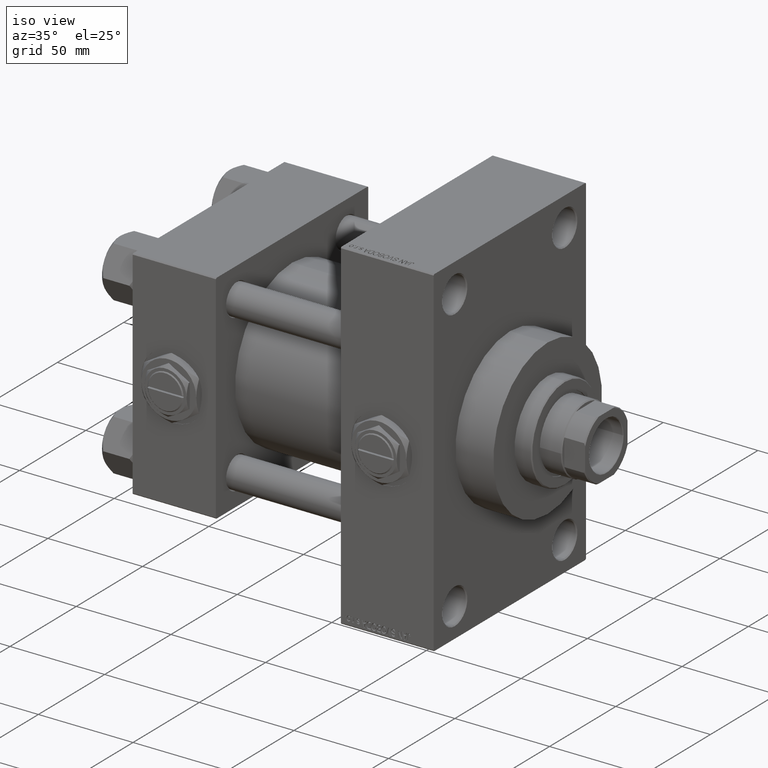
[diagram: clean part render]
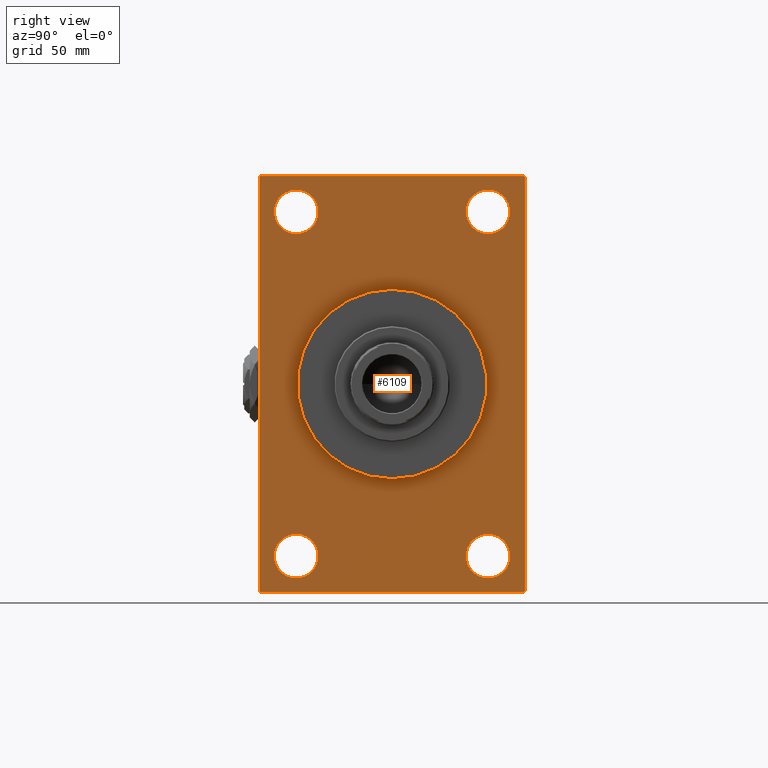
[diagram: tour spotlight — one face highlighted and labeled with its STEP entity id]
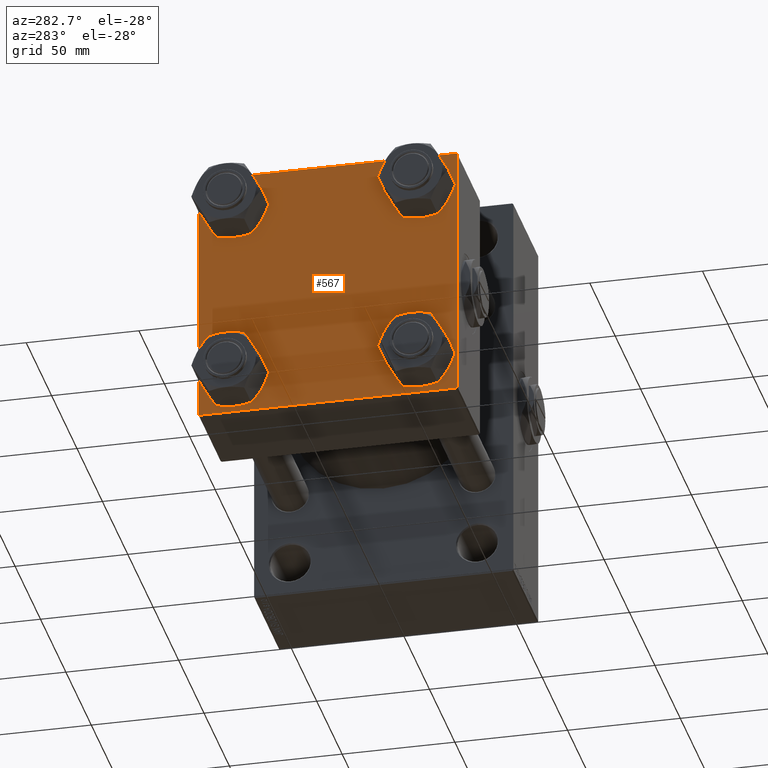
[diagram: tour spotlight — one face highlighted and labeled with its STEP entity id]
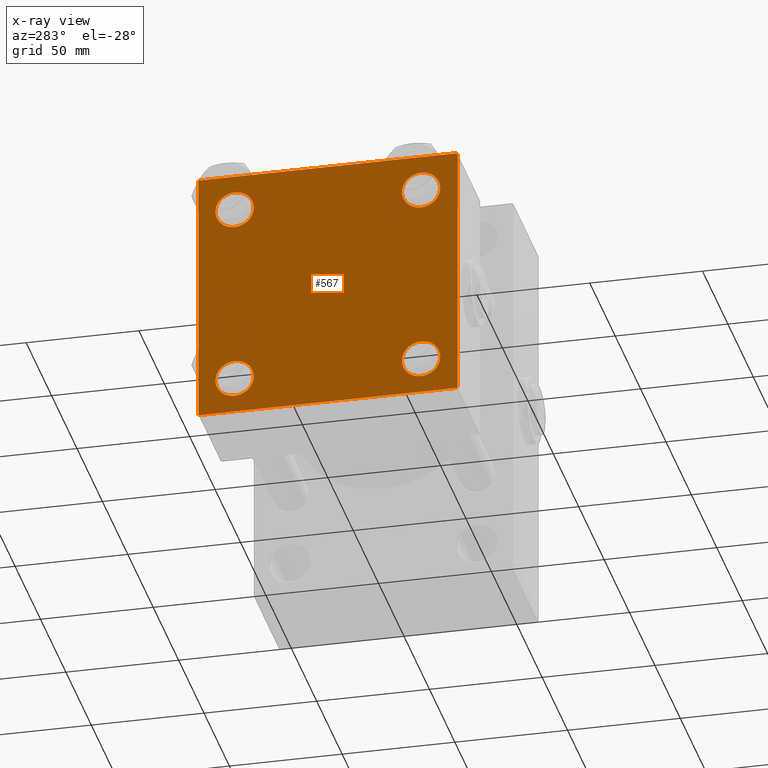
[diagram: x-ray of the same camera — body ghosted, this tour face saturated]
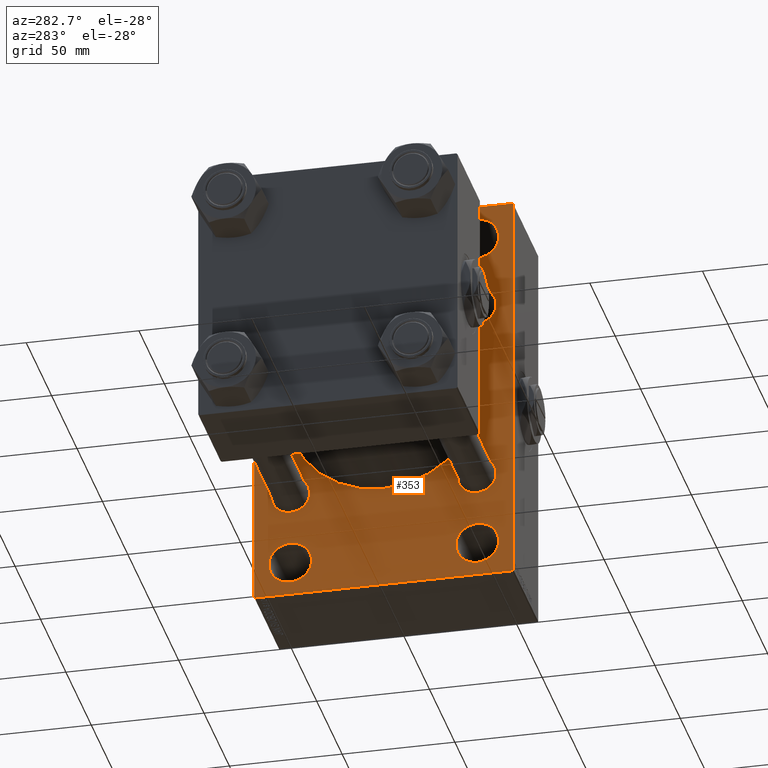
[diagram: tour spotlight — one face highlighted and labeled with its STEP entity id]
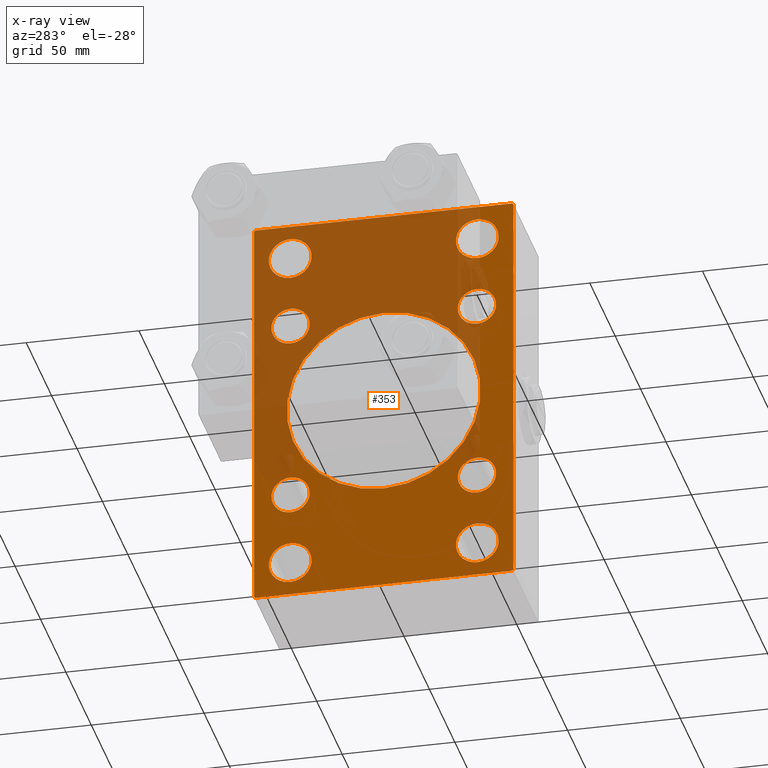
[diagram: x-ray of the same camera — body ghosted, this tour face saturated]
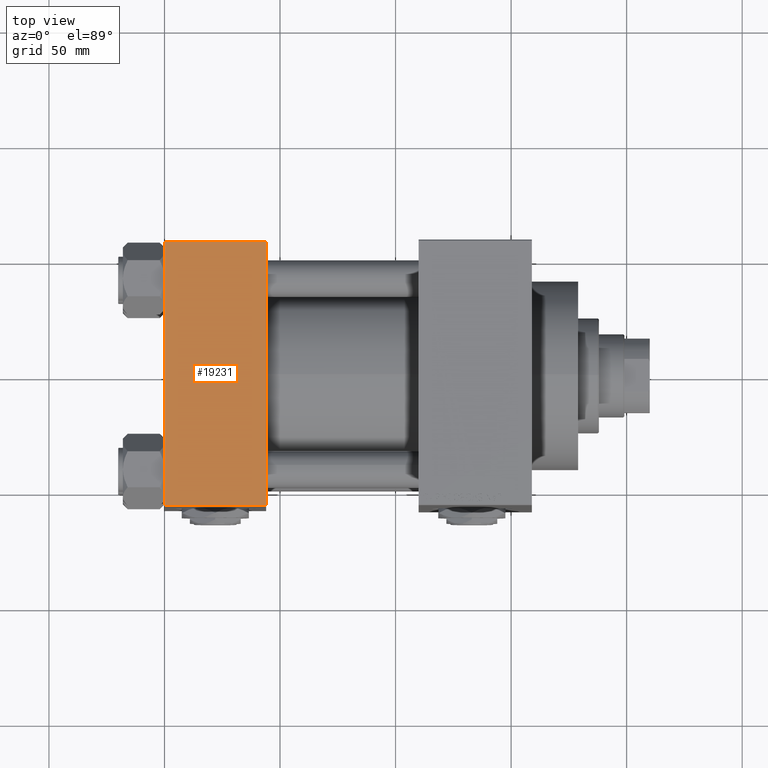
[diagram: tour spotlight — one face highlighted and labeled with its STEP entity id]
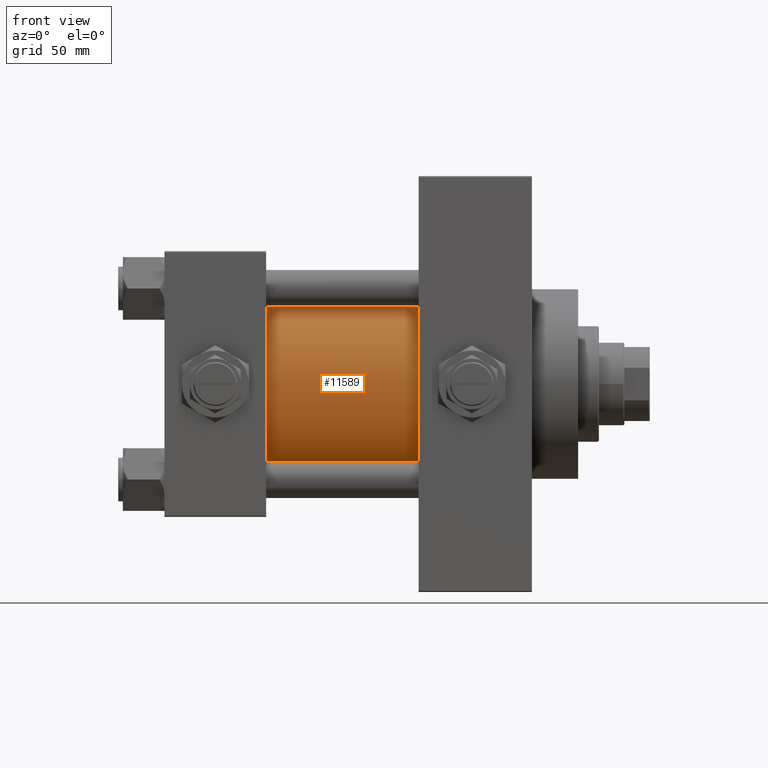
[diagram: tour spotlight — one face highlighted and labeled with its STEP entity id]
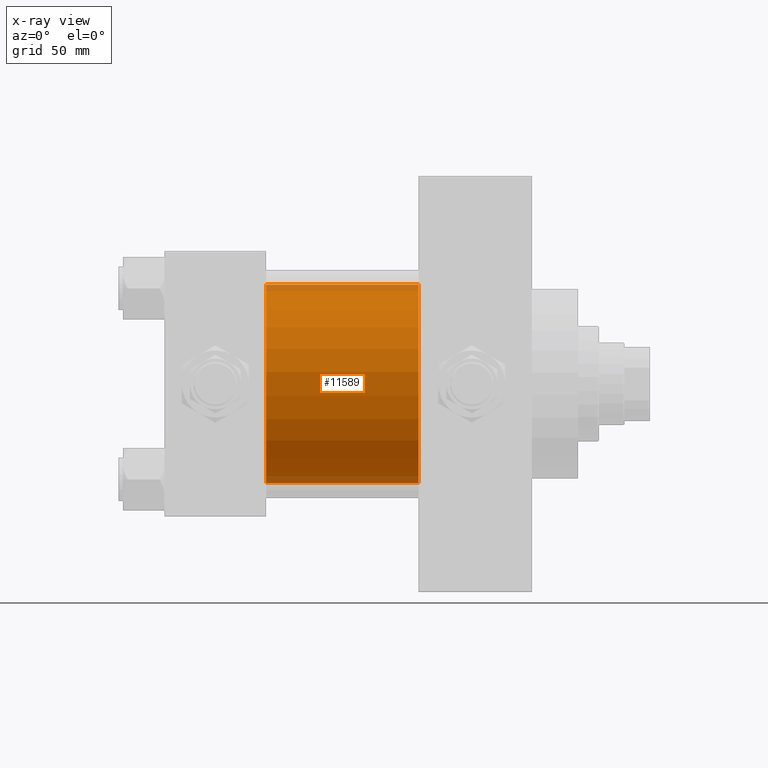
[diagram: x-ray of the same camera — body ghosted, this tour face saturated]
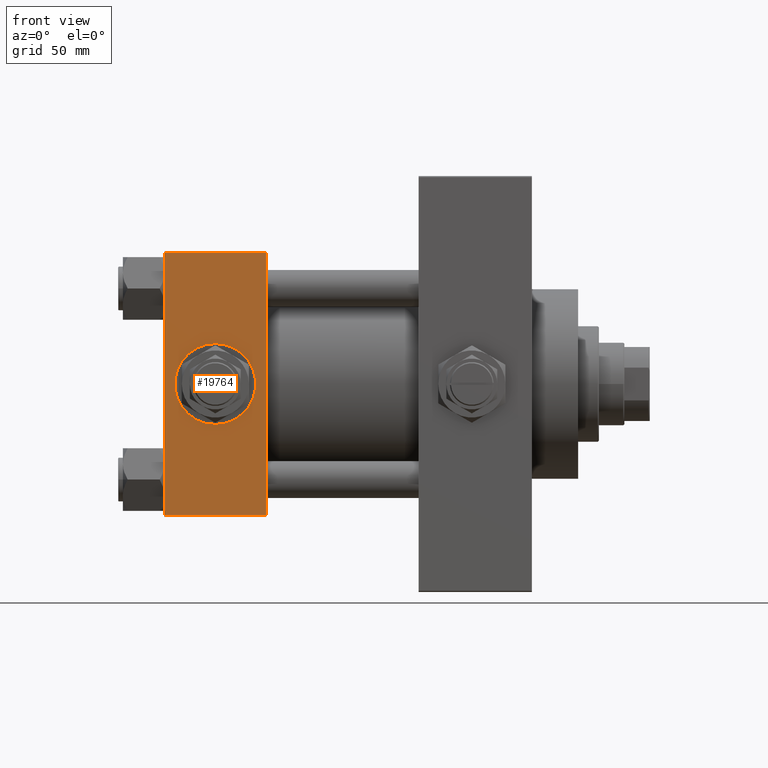
[diagram: tour spotlight — one face highlighted and labeled with its STEP entity id]
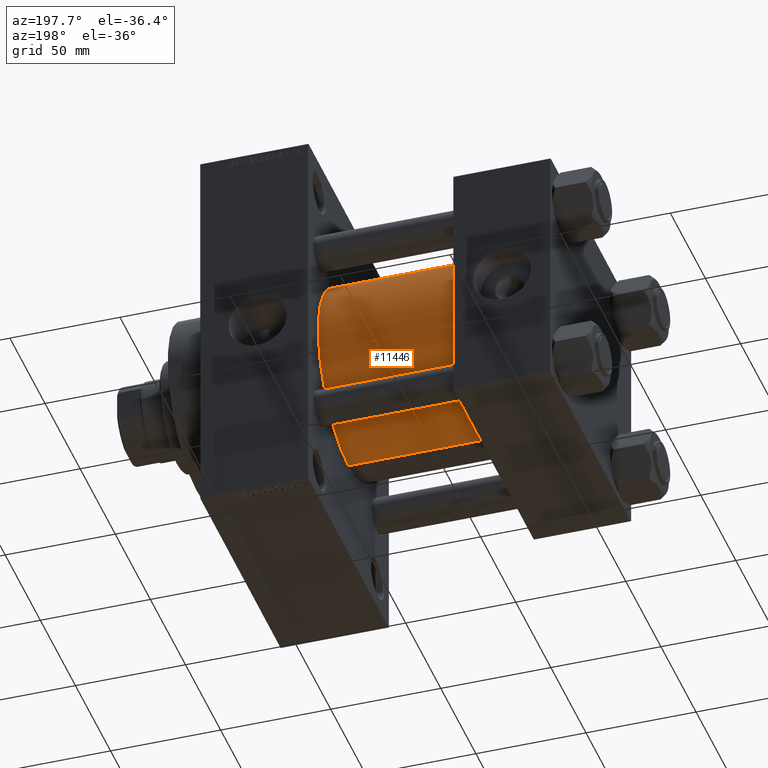
[diagram: tour spotlight — one face highlighted and labeled with its STEP entity id]
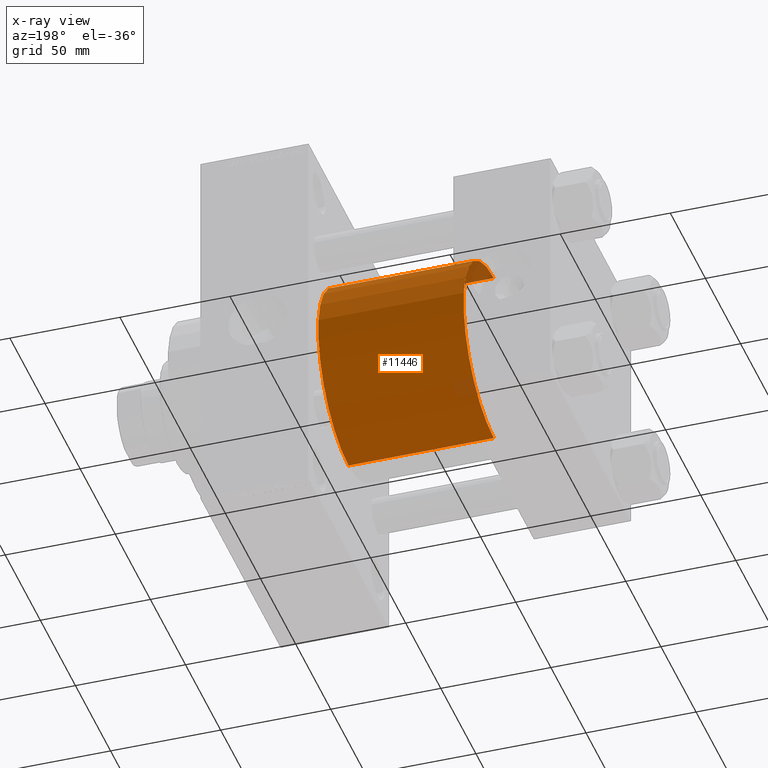
[diagram: x-ray of the same camera — body ghosted, this tour face saturated]
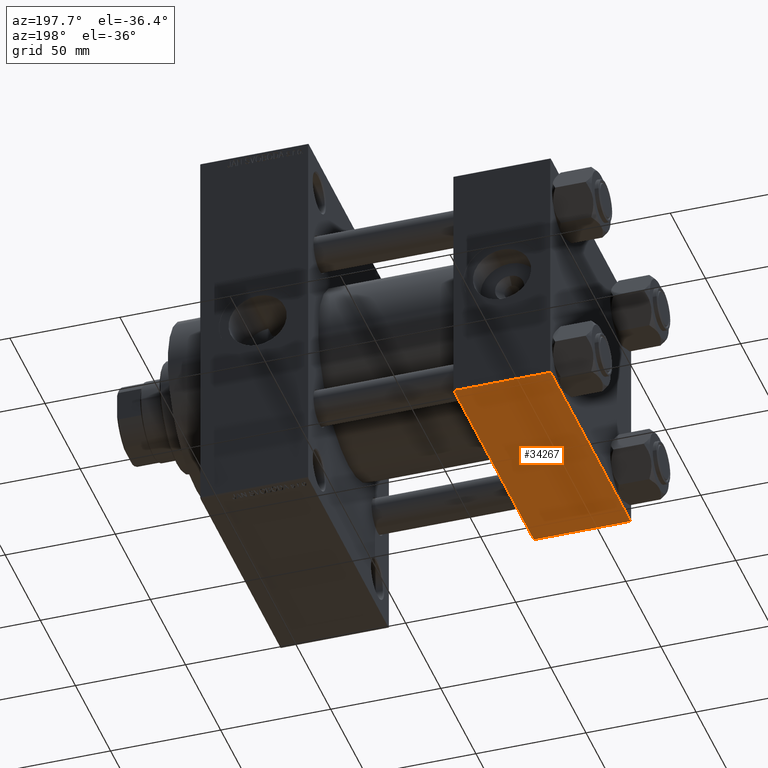
[diagram: tour spotlight — one face highlighted and labeled with its STEP entity id]
A machine part: a face-by-face anatomy tour. The part has 1253 B-rep faces; the first image is the clean iso view, then the 8 largest visible faces are spotlighted one at a time (largest first), each with its STEP entity span.

Face 1 — right view, entity #6109. In plain terms, the highlighted planar face has unit normal (-1, 0, 0).
Definition (entity closure, byte-faithful):
#536 = CARTESIAN_POINT ( 'NONE',  ( 159.0000000000000000, -57.50000000000002132, 89.49999999999994316 ) ) ;
#541 = DIRECTION ( 'NONE',  ( -0.000000000000000000, 0.7071067811865574537, 0.7071067811865376918 ) ) ;
#1852 = VECTOR ( 'NONE', #11696, 1000.000000000000114 ) ;
#1993 = AXIS2_PLACEMENT_3D ( 'NONE', #18969, #27258, #45889 ) ;
#2181 = VERTEX_POINT ( 'NONE', #26564 ) ;
#2430 = EDGE_CURVE ( 'NONE', #33983, #14813, #35581, .T. ) ;
#2466 = EDGE_CURVE ( 'NONE', #25971, #13571, #19193, .T. ) ;
#2572 = FACE_OUTER_BOUND ( 'NONE', #30852, .T. ) ;
#3001 = CARTESIAN_POINT ( 'NONE',  ( 159.0000000000000000, 0.000000000000000000, 41.00000000000000000 ) ) ;
#3270 = DIRECTION ( 'NONE',  ( 0.000000000000000000, 3.854941057726238467E-17, -1.000000000000000000 ) ) ;
#3385 = DIRECTION ( 'NONE',  ( 1.000000000000000000, 0.000000000000000000, 0.000000000000000000 ) ) ;
#3514 = CIRCLE ( 'NONE', #33267, 41.00000000000000000 ) ;
#3839 = VERTEX_POINT ( 'NONE', #34597 ) ;
#4225 = VECTOR ( 'NONE', #541, 999.9999999999998863 ) ;
#4352 = VERTEX_POINT ( 'NONE', #3001 ) ;
#4905 = DIRECTION ( 'NONE',  ( 0.000000000000000000, -1.000000000000000000, -1.206764157201257291E-16 ) ) ;
#5055 = LINE ( 'NONE', #44058, #22355 ) ;
#5115 = AXIS2_PLACEMENT_3D ( 'NONE', #26000, #21972, #21212 ) ;
#5150 = VECTOR ( 'NONE', #3270, 1000.000000000000000 ) ;
#6035 = DIRECTION ( 'NONE',  ( 0.000000000000000000, 0.000000000000000000, 1.000000000000000000 ) ) ;
#6109 = ADVANCED_FACE ( 'NONE', ( #44611, #29268, #25746, #44358, #29022, #2572 ), #17429, .F. ) ;
#6511 = CARTESIAN_POINT ( 'NONE',  ( 159.0000000000000000, 56.99999999999994316, 89.99999999999998579 ) ) ;
#6919 = DIRECTION ( 'NONE',  ( 0.000000000000000000, 0.7071067811865574537, -0.7071067811865376918 ) ) ;
#7114 = VECTOR ( 'NONE', #9586, 1000.000000000000000 ) ;
#7188 = EDGE_CURVE ( 'NONE', #24401, #13571, #48829, .T. ) ;
#7698 = ORIENTED_EDGE ( 'NONE', *, *, #41878, .T. ) ;
#8160 = CARTESIAN_POINT ( 'NONE',  ( 159.0000000000000000, 56.99999999999994316, 89.99999999999998579 ) ) ;
#8598 = CARTESIAN_POINT ( 'NONE',  ( 159.0000000000000000, 41.50000000000000711, -64.99999999999998579 ) ) ;
#9065 = VERTEX_POINT ( 'NONE', #31118 ) ;
#9334 = EDGE_CURVE ( 'NONE', #20875, #4352, #3514, .T. ) ;
#9586 = DIRECTION ( 'NONE',  ( 0.000000000000000000, 0.000000000000000000, -1.000000000000000000 ) ) ;
#9597 = CARTESIAN_POINT ( 'NONE',  ( 159.0000000000000000, 57.49999999999997868, -89.49999999999990052 ) ) ;
#9803 = AXIS2_PLACEMENT_3D ( 'NONE', #48675, #17462, #25279 ) ;
#9904 = EDGE_CURVE ( 'NONE', #41154, #47639, #13175, .T. ) ;
#10196 = AXIS2_PLACEMENT_3D ( 'NONE', #18315, #49012, #34184 ) ;
#11108 = ORIENTED_EDGE ( 'NONE', *, *, #25843, .T. ) ;
#11181 = EDGE_LOOP ( 'NONE', ( #28216, #42242 ) ) ;
#11696 = DIRECTION ( 'NONE',  ( 0.000000000000000000, -0.7071067811865474617, 0.7071067811865474617 ) ) ;
#11880 = DIRECTION ( 'NONE',  ( -0.000000000000000000, -0.7071067811865524577, -0.7071067811865426878 ) ) ;
#13074 = VERTEX_POINT ( 'NONE', #6511 ) ;
#13175 = CIRCLE ( 'NONE', #13287, 9.500000000000008882 ) ;
#13287 = AXIS2_PLACEMENT_3D ( 'NONE', #47559, #43795, #6035 ) ;
#13571 = VERTEX_POINT ( 'NONE', #9597 ) ;
#13832 = CARTESIAN_POINT ( 'NONE',  ( 159.0000000000000000, -41.49999999999999289, 84.00000000000001421 ) ) ;
#13940 = VECTOR ( 'NONE', #11880, 1000.000000000000000 ) ;
#14504 = AXIS2_PLACEMENT_3D ( 'NONE', #43507, #23902, #39260 ) ;
#14813 = VERTEX_POINT ( 'NONE', #21225 ) ;
#14826 = CIRCLE ( 'NONE', #21226, 9.500000000000008882 ) ;
#15463 = CARTESIAN_POINT ( 'NONE',  ( 159.0000000000000000, 0.000000000000000000, 0.000000000000000000 ) ) ;
#15824 = CARTESIAN_POINT ( 'NONE',  ( 159.0000000000000000, 5.021051876504148963E-15, -41.00000000000000000 ) ) ;
#17082 = AXIS2_PLACEMENT_3D ( 'NONE', #21216, #32803, #29027 ) ;
#17088 = EDGE_LOOP ( 'NONE', ( #44764, #18946 ) ) ;
#17429 = PLANE ( 'NONE',  #5115 ) ;
#17462 = DIRECTION ( 'NONE',  ( -1.000000000000000000, 0.000000000000000000, -0.000000000000000000 ) ) ;
#17861 = ORIENTED_EDGE ( 'NONE', *, *, #44923, .T. ) ;
#18151 = EDGE_CURVE ( 'NONE', #4352, #20875, #37077, .T. ) ;
#18315 = CARTESIAN_POINT ( 'NONE',  ( 159.0000000000000000, 41.50000000000000711, 74.50000000000001421 ) ) ;
#18351 = AXIS2_PLACEMENT_3D ( 'NONE', #33424, #18567, #22347 ) ;
#18567 = DIRECTION ( 'NONE',  ( -1.000000000000000000, 0.000000000000000000, -0.000000000000000000 ) ) ;
#18946 = ORIENTED_EDGE ( 'NONE', *, *, #48573, .T. ) ;
#18969 = CARTESIAN_POINT ( 'NONE',  ( 159.0000000000000000, -41.49999999999999289, -74.49999999999998579 ) ) ;
#19193 = LINE ( 'NONE', #38585, #4225 ) ;
#19674 = ORIENTED_EDGE ( 'NONE', *, *, #18151, .F. ) ;
#19853 = VECTOR ( 'NONE', #4905, 1000.000000000000000 ) ;
#20754 = CARTESIAN_POINT ( 'NONE',  ( 159.0000000000000000, 57.49999999999997158, 89.99999999999998579 ) ) ;
#20875 = VERTEX_POINT ( 'NONE', #15824 ) ;
#21204 = VERTEX_POINT ( 'NONE', #21962 ) ;
#21212 = DIRECTION ( 'NONE',  ( -0.000000000000000000, 0.000000000000000000, 1.000000000000000000 ) ) ;
#21216 = CARTESIAN_POINT ( 'NONE',  ( 159.0000000000000000, -41.49999999999999289, -74.49999999999998579 ) ) ;
#21225 = CARTESIAN_POINT ( 'NONE',  ( 159.0000000000000000, -41.49999999999999289, -64.99999999999997158 ) ) ;
#21226 = AXIS2_PLACEMENT_3D ( 'NONE', #39382, #46184, #42899 ) ;
#21962 = CARTESIAN_POINT ( 'NONE',  ( 159.0000000000000000, 41.50000000000000711, 84.00000000000001421 ) ) ;
#21972 = DIRECTION ( 'NONE',  ( -1.000000000000000000, 0.000000000000000000, -0.000000000000000000 ) ) ;
#22347 = DIRECTION ( 'NONE',  ( 0.000000000000000000, 0.000000000000000000, 1.000000000000000000 ) ) ;
#22355 = VECTOR ( 'NONE', #32003, 1000.000000000000000 ) ;
#23423 = EDGE_CURVE ( 'NONE', #47639, #41154, #31514, .T. ) ;
#23829 = ORIENTED_EDGE ( 'NONE', *, *, #7188, .F. ) ;
#23902 = DIRECTION ( 'NONE',  ( 1.000000000000000000, 0.000000000000000000, 0.000000000000000000 ) ) ;
#24290 = CARTESIAN_POINT ( 'NONE',  ( 159.0000000000000000, 57.49999999999997158, 89.49999999999995737 ) ) ;
#24401 = VERTEX_POINT ( 'NONE', #24290 ) ;
#25039 = CARTESIAN_POINT ( 'NONE',  ( 159.0000000000000000, 41.50000000000000711, -74.50000000000000000 ) ) ;
#25279 = DIRECTION ( 'NONE',  ( 0.000000000000000000, 0.000000000000000000, 1.000000000000000000 ) ) ;
#25293 = CARTESIAN_POINT ( 'NONE',  ( 159.0000000000000000, -56.99999999999996447, -90.00000000000001421 ) ) ;
#25746 = FACE_BOUND ( 'NONE', #40010, .T. ) ;
#25843 = EDGE_CURVE ( 'NONE', #24401, #13074, #31070, .T. ) ;
#25971 = VERTEX_POINT ( 'NONE', #42881 ) ;
#26000 = CARTESIAN_POINT ( 'NONE',  ( 159.0000000000000000, 0.000000000000000000, 0.000000000000000000 ) ) ;
#26173 = EDGE_CURVE ( 'NONE', #45357, #9065, #35046, .T. ) ;
#26564 = CARTESIAN_POINT ( 'NONE',  ( 159.0000000000000000, 41.50000000000000711, 65.00000000000000000 ) ) ;
#27034 = DIRECTION ( 'NONE',  ( 0.000000000000000000, 0.000000000000000000, -1.000000000000000000 ) ) ;
#27258 = DIRECTION ( 'NONE',  ( -1.000000000000000000, 0.000000000000000000, -0.000000000000000000 ) ) ;
#28054 = EDGE_CURVE ( 'NONE', #37112, #40396, #14826, .T. ) ;
#28216 = ORIENTED_EDGE ( 'NONE', *, *, #23423, .T. ) ;
#28322 = CARTESIAN_POINT ( 'NONE',  ( 159.0000000000000000, -56.99999999999996447, -90.00000000000001421 ) ) ;
#28405 = CARTESIAN_POINT ( 'NONE',  ( 159.0000000000000000, -41.49999999999999289, 65.00000000000000000 ) ) ;
#28471 = CARTESIAN_POINT ( 'NONE',  ( 159.0000000000000000, -57.50000000000002132, 89.99999999999997158 ) ) ;
#29022 = FACE_BOUND ( 'NONE', #29427, .T. ) ;
#29027 = DIRECTION ( 'NONE',  ( 0.000000000000000000, 0.000000000000000000, 1.000000000000000000 ) ) ;
#29268 = FACE_BOUND ( 'NONE', #31301, .T. ) ;
#29318 = LINE ( 'NONE', #25293, #37564 ) ;
#29321 = DIRECTION ( 'NONE',  ( 0.000000000000000000, 0.000000000000000000, 1.000000000000000000 ) ) ;
#29427 = EDGE_LOOP ( 'NONE', ( #19674, #30952 ) ) ;
#29487 = ORIENTED_EDGE ( 'NONE', *, *, #26173, .T. ) ;
#29713 = CARTESIAN_POINT ( 'NONE',  ( 159.0000000000000000, 57.49999999999997158, 89.99999999999998579 ) ) ;
#30505 = CARTESIAN_POINT ( 'NONE',  ( 159.0000000000000000, -56.99999999999998579, 89.99999999999997158 ) ) ;
#30740 = ORIENTED_EDGE ( 'NONE', *, *, #32883, .T. ) ;
#30852 = EDGE_LOOP ( 'NONE', ( #33486, #7698, #32633, #39918, #23829, #11108, #17861, #29487 ) ) ;
#30952 = ORIENTED_EDGE ( 'NONE', *, *, #9334, .F. ) ;
#31070 = LINE ( 'NONE', #8160, #1852 ) ;
#31118 = CARTESIAN_POINT ( 'NONE',  ( 159.0000000000000000, -57.50000000000002132, 89.49999999999994316 ) ) ;
#31301 = EDGE_LOOP ( 'NONE', ( #36360, #30740 ) ) ;
#31514 = CIRCLE ( 'NONE', #9803, 9.500000000000008882 ) ;
#32003 = DIRECTION ( 'NONE',  ( 0.000000000000000000, -1.000000000000000000, -1.206764157201257045E-16 ) ) ;
#32147 = ORIENTED_EDGE ( 'NONE', *, *, #28054, .T. ) ;
#32633 = ORIENTED_EDGE ( 'NONE', *, *, #47372, .F. ) ;
#32803 = DIRECTION ( 'NONE',  ( -1.000000000000000000, 0.000000000000000000, -0.000000000000000000 ) ) ;
#32883 = EDGE_CURVE ( 'NONE', #14813, #33983, #47792, .T. ) ;
#33267 = AXIS2_PLACEMENT_3D ( 'NONE', #15463, #3385, #27034 ) ;
#33424 = CARTESIAN_POINT ( 'NONE',  ( 159.0000000000000000, 41.50000000000000711, 74.50000000000001421 ) ) ;
#33486 = ORIENTED_EDGE ( 'NONE', *, *, #48121, .T. ) ;
#33983 = VERTEX_POINT ( 'NONE', #47600 ) ;
#34184 = DIRECTION ( 'NONE',  ( 0.000000000000000000, 0.000000000000000000, 1.000000000000000000 ) ) ;
#34597 = CARTESIAN_POINT ( 'NONE',  ( 159.0000000000000000, -57.50000000000002132, -89.49999999999991473 ) ) ;
#35046 = LINE ( 'NONE', #536, #13940 ) ;
#35077 = AXIS2_PLACEMENT_3D ( 'NONE', #25039, #40400, #29321 ) ;
#35581 = CIRCLE ( 'NONE', #17082, 9.500000000000008882 ) ;
#35819 = VERTEX_POINT ( 'NONE', #28322 ) ;
#35925 = EDGE_CURVE ( 'NONE', #40396, #37112, #44718, .T. ) ;
#35934 = CIRCLE ( 'NONE', #10196, 9.500000000000008882 ) ;
#36360 = ORIENTED_EDGE ( 'NONE', *, *, #2430, .T. ) ;
#36443 = ORIENTED_EDGE ( 'NONE', *, *, #35925, .T. ) ;
#37077 = CIRCLE ( 'NONE', #14504, 41.00000000000000000 ) ;
#37112 = VERTEX_POINT ( 'NONE', #8598 ) ;
#37564 = VECTOR ( 'NONE', #6919, 999.9999999999998863 ) ;
#38460 = CIRCLE ( 'NONE', #18351, 9.500000000000008882 ) ;
#38585 = CARTESIAN_POINT ( 'NONE',  ( 159.0000000000000000, 57.49999999999997868, -89.49999999999995737 ) ) ;
#39260 = DIRECTION ( 'NONE',  ( 0.000000000000000000, 0.000000000000000000, -1.000000000000000000 ) ) ;
#39382 = CARTESIAN_POINT ( 'NONE',  ( 159.0000000000000000, 41.50000000000000711, -74.50000000000000000 ) ) ;
#39918 = ORIENTED_EDGE ( 'NONE', *, *, #2466, .T. ) ;
#40010 = EDGE_LOOP ( 'NONE', ( #36443, #32147 ) ) ;
#40396 = VERTEX_POINT ( 'NONE', #42001 ) ;
#40400 = DIRECTION ( 'NONE',  ( -1.000000000000000000, 0.000000000000000000, -0.000000000000000000 ) ) ;
#41154 = VERTEX_POINT ( 'NONE', #13832 ) ;
#41878 = EDGE_CURVE ( 'NONE', #3839, #35819, #29318, .T. ) ;
#42001 = CARTESIAN_POINT ( 'NONE',  ( 159.0000000000000000, 41.50000000000000711, -84.00000000000000000 ) ) ;
#42242 = ORIENTED_EDGE ( 'NONE', *, *, #9904, .T. ) ;
#42464 = EDGE_CURVE ( 'NONE', #2181, #21204, #35934, .T. ) ;
#42881 = CARTESIAN_POINT ( 'NONE',  ( 159.0000000000000000, 56.99999999999992895, -90.00000000000000000 ) ) ;
#42899 = DIRECTION ( 'NONE',  ( 0.000000000000000000, 0.000000000000000000, 1.000000000000000000 ) ) ;
#43507 = CARTESIAN_POINT ( 'NONE',  ( 159.0000000000000000, 0.000000000000000000, 0.000000000000000000 ) ) ;
#43795 = DIRECTION ( 'NONE',  ( -1.000000000000000000, 0.000000000000000000, -0.000000000000000000 ) ) ;
#44058 = CARTESIAN_POINT ( 'NONE',  ( 159.0000000000000000, 57.49999999999997868, -90.00000000000000000 ) ) ;
#44358 = FACE_BOUND ( 'NONE', #17088, .T. ) ;
#44611 = FACE_BOUND ( 'NONE', #11181, .T. ) ;
#44718 = CIRCLE ( 'NONE', #35077, 9.500000000000008882 ) ;
#44764 = ORIENTED_EDGE ( 'NONE', *, *, #42464, .T. ) ;
#44923 = EDGE_CURVE ( 'NONE', #13074, #45357, #47179, .T. ) ;
#45357 = VERTEX_POINT ( 'NONE', #30505 ) ;
#45889 = DIRECTION ( 'NONE',  ( 0.000000000000000000, 0.000000000000000000, 1.000000000000000000 ) ) ;
#46184 = DIRECTION ( 'NONE',  ( -1.000000000000000000, 0.000000000000000000, -0.000000000000000000 ) ) ;
#47179 = LINE ( 'NONE', #20754, #19853 ) ;
#47335 = LINE ( 'NONE', #28471, #7114 ) ;
#47372 = EDGE_CURVE ( 'NONE', #25971, #35819, #5055, .T. ) ;
#47559 = CARTESIAN_POINT ( 'NONE',  ( 159.0000000000000000, -41.49999999999999289, 74.50000000000001421 ) ) ;
#47600 = CARTESIAN_POINT ( 'NONE',  ( 159.0000000000000000, -41.49999999999999289, -83.99999999999998579 ) ) ;
#47639 = VERTEX_POINT ( 'NONE', #28405 ) ;
#47792 = CIRCLE ( 'NONE', #1993, 9.500000000000008882 ) ;
#48121 = EDGE_CURVE ( 'NONE', #9065, #3839, #47335, .T. ) ;
#48573 = EDGE_CURVE ( 'NONE', #21204, #2181, #38460, .T. ) ;
#48675 = CARTESIAN_POINT ( 'NONE',  ( 159.0000000000000000, -41.49999999999999289, 74.50000000000001421 ) ) ;
#48829 = LINE ( 'NONE', #29713, #5150 ) ;
#49012 = DIRECTION ( 'NONE',  ( -1.000000000000000000, 0.000000000000000000, -0.000000000000000000 ) ) ;

Face 2 — auxiliary view, entity #567. An x-ray twin of the same camera follows (body ghosted, this face saturated) — the face is partly hidden behind the body. In plain terms, the highlighted planar face has unit normal (-1, 0, 0).
Definition (entity closure, byte-faithful):
#134 = AXIS2_PLACEMENT_3D ( 'NONE', #8329, #27953, #43292 ) ;
#420 = AXIS2_PLACEMENT_3D ( 'NONE', #2850, #29543, #13251 ) ;
#567 = ADVANCED_FACE ( 'NONE', ( #42809, #4789, #39045, #35518, #12844 ), #12599, .T. ) ;
#910 = LINE ( 'NONE', #8475, #4102 ) ;
#1338 = DIRECTION ( 'NONE',  ( 1.000000000000000000, -0.000000000000000000, 0.000000000000000000 ) ) ;
#1649 = CARTESIAN_POINT ( 'NONE',  ( 0.000000000000000000, -57.50000000000000711, -57.00000000000000711 ) ) ;
#1930 = ORIENTED_EDGE ( 'NONE', *, *, #38496, .T. ) ;
#1980 = VERTEX_POINT ( 'NONE', #1649 ) ;
#2101 = VECTOR ( 'NONE', #3118, 1000.000000000000114 ) ;
#2261 = EDGE_CURVE ( 'NONE', #15038, #11196, #38820, .T. ) ;
#2574 = CIRCLE ( 'NONE', #21887, 8.499999999999992895 ) ;
#2850 = CARTESIAN_POINT ( 'NONE',  ( 0.000000000000000000, 41.34999999999999432, 41.35000000000000142 ) ) ;
#3118 = DIRECTION ( 'NONE',  ( -0.000000000000000000, -0.7071067811865376918, -0.7071067811865573427 ) ) ;
#3256 = VERTEX_POINT ( 'NONE', #25760 ) ;
#3533 = CARTESIAN_POINT ( 'NONE',  ( 0.000000000000000000, 41.34999999999999432, 41.35000000000000142 ) ) ;
#3616 = CARTESIAN_POINT ( 'NONE',  ( 0.000000000000000000, -57.50000000000000711, 57.49999999999999289 ) ) ;
#3631 = AXIS2_PLACEMENT_3D ( 'NONE', #27682, #20369, #47282 ) ;
#3784 = EDGE_CURVE ( 'NONE', #27102, #18732, #18490, .T. ) ;
#3785 = ORIENTED_EDGE ( 'NONE', *, *, #19052, .F. ) ;
#3892 = EDGE_LOOP ( 'NONE', ( #22233, #34532, #46742, #46352, #9611, #47739, #3785, #31003 ) ) ;
#4102 = VECTOR ( 'NONE', #16035, 1000.000000000000000 ) ;
#4789 = FACE_BOUND ( 'NONE', #43008, .T. ) ;
#5223 = CIRCLE ( 'NONE', #420, 8.499999999999992895 ) ;
#6045 = CARTESIAN_POINT ( 'NONE',  ( 0.000000000000000000, -41.34999999999998721, -32.85000000000001563 ) ) ;
#6301 = CIRCLE ( 'NONE', #25603, 8.499999999999992895 ) ;
#6386 = ORIENTED_EDGE ( 'NONE', *, *, #37913, .T. ) ;
#7322 = DIRECTION ( 'NONE',  ( 0.000000000000000000, -1.000000000000000000, -1.206764157201257045E-16 ) ) ;
#7550 = VERTEX_POINT ( 'NONE', #45929 ) ;
#7922 = VERTEX_POINT ( 'NONE', #48325 ) ;
#8329 = CARTESIAN_POINT ( 'NONE',  ( 0.000000000000000000, 0.000000000000000000, 0.000000000000000000 ) ) ;
#8475 = CARTESIAN_POINT ( 'NONE',  ( 0.000000000000000000, 57.49999999999999289, -57.49999999999999289 ) ) ;
#9335 = VERTEX_POINT ( 'NONE', #49690 ) ;
#9455 = VERTEX_POINT ( 'NONE', #30809 ) ;
#9611 = ORIENTED_EDGE ( 'NONE', *, *, #43948, .F. ) ;
#9923 = DIRECTION ( 'NONE',  ( 0.000000000000000000, 0.000000000000000000, 1.000000000000000000 ) ) ;
#10175 = VERTEX_POINT ( 'NONE', #47004 ) ;
#10908 = CARTESIAN_POINT ( 'NONE',  ( 0.000000000000000000, 41.34999999999999432, -32.85000000000000853 ) ) ;
#10912 = CARTESIAN_POINT ( 'NONE',  ( 0.000000000000000000, -41.34999999999998721, 32.85000000000001563 ) ) ;
#11030 = VECTOR ( 'NONE', #16080, 1000.000000000000114 ) ;
#11196 = VERTEX_POINT ( 'NONE', #19607 ) ;
#11432 = CARTESIAN_POINT ( 'NONE',  ( -0.000000000000000000, -57.25000000000081712, 57.24999999999922551 ) ) ;
#11584 = DIRECTION ( 'NONE',  ( 1.000000000000000000, -0.000000000000000000, 0.000000000000000000 ) ) ;
#11792 = VERTEX_POINT ( 'NONE', #10908 ) ;
#11979 = AXIS2_PLACEMENT_3D ( 'NONE', #24395, #44010, #17327 ) ;
#12246 = AXIS2_PLACEMENT_3D ( 'NONE', #12925, #1338, #47883 ) ;
#12599 = PLANE ( 'NONE',  #134 ) ;
#12844 = FACE_OUTER_BOUND ( 'NONE', #3892, .T. ) ;
#12925 = CARTESIAN_POINT ( 'NONE',  ( 0.000000000000000000, -41.34999999999998721, 41.35000000000000853 ) ) ;
#13022 = EDGE_CURVE ( 'NONE', #26304, #10175, #33700, .T. ) ;
#13188 = CARTESIAN_POINT ( 'NONE',  ( 0.000000000000000000, -57.00000000000003553, 57.49999999999999289 ) ) ;
#13251 = DIRECTION ( 'NONE',  ( 0.000000000000000000, 0.000000000000000000, 1.000000000000000000 ) ) ;
#13744 = DIRECTION ( 'NONE',  ( 0.000000000000000000, -0.7071067811865474617, 0.7071067811865474617 ) ) ;
#14310 = CARTESIAN_POINT ( 'NONE',  ( 0.000000000000000000, 57.49999999999999289, 57.00000000000003553 ) ) ;
#14847 = DIRECTION ( 'NONE',  ( 0.000000000000000000, 0.000000000000000000, 1.000000000000000000 ) ) ;
#15038 = VERTEX_POINT ( 'NONE', #10912 ) ;
#16035 = DIRECTION ( 'NONE',  ( 0.000000000000000000, -1.000000000000000000, -1.206764157201257045E-16 ) ) ;
#16050 = LINE ( 'NONE', #29735, #39389 ) ;
#16080 = DIRECTION ( 'NONE',  ( 0.000000000000000000, 0.7071067811865573427, -0.7071067811865376918 ) ) ;
#16441 = ORIENTED_EDGE ( 'NONE', *, *, #13022, .T. ) ;
#16882 = CIRCLE ( 'NONE', #21706, 8.499999999999992895 ) ;
#17327 = DIRECTION ( 'NONE',  ( 0.000000000000000000, 0.000000000000000000, 1.000000000000000000 ) ) ;
#17393 = EDGE_CURVE ( 'NONE', #7922, #9455, #910, .T. ) ;
#18068 = EDGE_LOOP ( 'NONE', ( #44505, #6386 ) ) ;
#18490 = LINE ( 'NONE', #11432, #45259 ) ;
#18554 = EDGE_CURVE ( 'NONE', #10175, #26304, #16882, .T. ) ;
#18732 = VERTEX_POINT ( 'NONE', #13188 ) ;
#18775 = CARTESIAN_POINT ( 'NONE',  ( 0.000000000000000000, -41.34999999999998721, -41.35000000000000853 ) ) ;
#19052 = EDGE_CURVE ( 'NONE', #27726, #18732, #16050, .T. ) ;
#19503 = DIRECTION ( 'NONE',  ( 0.000000000000000000, 0.000000000000000000, 1.000000000000000000 ) ) ;
#19607 = CARTESIAN_POINT ( 'NONE',  ( 0.000000000000000000, -41.34999999999998721, 49.85000000000000853 ) ) ;
#20369 = DIRECTION ( 'NONE',  ( 1.000000000000000000, -0.000000000000000000, 0.000000000000000000 ) ) ;
#21706 = AXIS2_PLACEMENT_3D ( 'NONE', #18775, #30107, #19503 ) ;
#21887 = AXIS2_PLACEMENT_3D ( 'NONE', #49060, #29945, #14847 ) ;
#22233 = ORIENTED_EDGE ( 'NONE', *, *, #30933, .T. ) ;
#23590 = EDGE_CURVE ( 'NONE', #11196, #15038, #34763, .T. ) ;
#23881 = CARTESIAN_POINT ( 'NONE',  ( 0.000000000000000000, 57.24999999999922551, 57.25000000000081712 ) ) ;
#24275 = EDGE_CURVE ( 'NONE', #3256, #11792, #2574, .T. ) ;
#24395 = CARTESIAN_POINT ( 'NONE',  ( 0.000000000000000000, -41.34999999999998721, -41.35000000000000853 ) ) ;
#25323 = LINE ( 'NONE', #32875, #30976 ) ;
#25603 = AXIS2_PLACEMENT_3D ( 'NONE', #3533, #11584, #37044 ) ;
#25760 = CARTESIAN_POINT ( 'NONE',  ( 0.000000000000000000, 41.34999999999999432, -49.85000000000000142 ) ) ;
#26056 = VECTOR ( 'NONE', #28663, 1000.000000000000000 ) ;
#26160 = CIRCLE ( 'NONE', #3631, 8.499999999999992895 ) ;
#26304 = VERTEX_POINT ( 'NONE', #6045 ) ;
#26419 = ORIENTED_EDGE ( 'NONE', *, *, #24275, .T. ) ;
#26541 = DIRECTION ( 'NONE',  ( -0.000000000000000000, 0.7071067811865376918, 0.7071067811865573427 ) ) ;
#26743 = VERTEX_POINT ( 'NONE', #14310 ) ;
#27102 = VERTEX_POINT ( 'NONE', #41858 ) ;
#27682 = CARTESIAN_POINT ( 'NONE',  ( 0.000000000000000000, 41.34999999999999432, -41.35000000000000142 ) ) ;
#27726 = VERTEX_POINT ( 'NONE', #45998 ) ;
#27895 = LINE ( 'NONE', #23881, #11030 ) ;
#27953 = DIRECTION ( 'NONE',  ( -1.000000000000000000, 0.000000000000000000, -0.000000000000000000 ) ) ;
#28663 = DIRECTION ( 'NONE',  ( 0.000000000000000000, 0.000000000000000000, -1.000000000000000000 ) ) ;
#29543 = DIRECTION ( 'NONE',  ( 1.000000000000000000, -0.000000000000000000, 0.000000000000000000 ) ) ;
#29735 = CARTESIAN_POINT ( 'NONE',  ( 0.000000000000000000, 57.49999999999999289, 57.50000000000000711 ) ) ;
#29945 = DIRECTION ( 'NONE',  ( 1.000000000000000000, -0.000000000000000000, 0.000000000000000000 ) ) ;
#30107 = DIRECTION ( 'NONE',  ( 1.000000000000000000, -0.000000000000000000, 0.000000000000000000 ) ) ;
#30809 = CARTESIAN_POINT ( 'NONE',  ( 0.000000000000000000, -57.00000000000000711, -57.50000000000000711 ) ) ;
#30933 = EDGE_CURVE ( 'NONE', #26743, #34641, #32691, .T. ) ;
#30976 = VECTOR ( 'NONE', #13744, 1000.000000000000114 ) ;
#31003 = ORIENTED_EDGE ( 'NONE', *, *, #42337, .T. ) ;
#31454 = EDGE_CURVE ( 'NONE', #9455, #1980, #25323, .T. ) ;
#31463 = EDGE_LOOP ( 'NONE', ( #1930, #26419 ) ) ;
#31549 = AXIS2_PLACEMENT_3D ( 'NONE', #32339, #44391, #9923 ) ;
#31763 = CARTESIAN_POINT ( 'NONE',  ( 0.000000000000000000, 57.49999999999999289, 57.50000000000000711 ) ) ;
#31968 = ORIENTED_EDGE ( 'NONE', *, *, #18554, .T. ) ;
#32339 = CARTESIAN_POINT ( 'NONE',  ( 0.000000000000000000, -41.34999999999998721, 41.35000000000000853 ) ) ;
#32691 = LINE ( 'NONE', #31763, #26056 ) ;
#32875 = CARTESIAN_POINT ( 'NONE',  ( 0.000000000000000000, -57.25000000000000711, -57.25000000000000711 ) ) ;
#33700 = CIRCLE ( 'NONE', #11979, 8.499999999999992895 ) ;
#34149 = ORIENTED_EDGE ( 'NONE', *, *, #2261, .T. ) ;
#34205 = EDGE_LOOP ( 'NONE', ( #47649, #34149 ) ) ;
#34532 = ORIENTED_EDGE ( 'NONE', *, *, #36617, .T. ) ;
#34641 = VERTEX_POINT ( 'NONE', #35946 ) ;
#34763 = CIRCLE ( 'NONE', #31549, 8.499999999999992895 ) ;
#35518 = FACE_BOUND ( 'NONE', #18068, .T. ) ;
#35895 = VECTOR ( 'NONE', #45147, 1000.000000000000000 ) ;
#35946 = CARTESIAN_POINT ( 'NONE',  ( 0.000000000000000000, 57.49999999999999289, -57.00000000000000711 ) ) ;
#36617 = EDGE_CURVE ( 'NONE', #34641, #7922, #45148, .T. ) ;
#37044 = DIRECTION ( 'NONE',  ( 0.000000000000000000, 0.000000000000000000, 1.000000000000000000 ) ) ;
#37913 = EDGE_CURVE ( 'NONE', #9335, #7550, #5223, .T. ) ;
#38116 = LINE ( 'NONE', #3616, #35895 ) ;
#38496 = EDGE_CURVE ( 'NONE', #11792, #3256, #26160, .T. ) ;
#38820 = CIRCLE ( 'NONE', #12246, 8.499999999999992895 ) ;
#39045 = FACE_BOUND ( 'NONE', #31463, .T. ) ;
#39389 = VECTOR ( 'NONE', #7322, 1000.000000000000000 ) ;
#41858 = CARTESIAN_POINT ( 'NONE',  ( 0.000000000000000000, -57.50000000000000711, 57.00000000000000711 ) ) ;
#42337 = EDGE_CURVE ( 'NONE', #27726, #26743, #27895, .T. ) ;
#42809 = FACE_BOUND ( 'NONE', #34205, .T. ) ;
#43008 = EDGE_LOOP ( 'NONE', ( #16441, #31968 ) ) ;
#43292 = DIRECTION ( 'NONE',  ( -0.000000000000000000, 0.000000000000000000, 1.000000000000000000 ) ) ;
#43948 = EDGE_CURVE ( 'NONE', #27102, #1980, #38116, .T. ) ;
#44010 = DIRECTION ( 'NONE',  ( 1.000000000000000000, -0.000000000000000000, 0.000000000000000000 ) ) ;
#44391 = DIRECTION ( 'NONE',  ( 1.000000000000000000, -0.000000000000000000, 0.000000000000000000 ) ) ;
#44505 = ORIENTED_EDGE ( 'NONE', *, *, #48688, .T. ) ;
#45147 = DIRECTION ( 'NONE',  ( 0.000000000000000000, 0.000000000000000000, -1.000000000000000000 ) ) ;
#45148 = LINE ( 'NONE', #49174, #2101 ) ;
#45259 = VECTOR ( 'NONE', #26541, 1000.000000000000114 ) ;
#45929 = CARTESIAN_POINT ( 'NONE',  ( 0.000000000000000000, 41.34999999999999432, 49.85000000000000142 ) ) ;
#45998 = CARTESIAN_POINT ( 'NONE',  ( 0.000000000000000000, 57.00000000000000711, 57.50000000000000711 ) ) ;
#46352 = ORIENTED_EDGE ( 'NONE', *, *, #31454, .T. ) ;
#46742 = ORIENTED_EDGE ( 'NONE', *, *, #17393, .T. ) ;
#47004 = CARTESIAN_POINT ( 'NONE',  ( 0.000000000000000000, -41.34999999999998721, -49.85000000000000853 ) ) ;
#47282 = DIRECTION ( 'NONE',  ( 0.000000000000000000, 0.000000000000000000, 1.000000000000000000 ) ) ;
#47649 = ORIENTED_EDGE ( 'NONE', *, *, #23590, .T. ) ;
#47739 = ORIENTED_EDGE ( 'NONE', *, *, #3784, .T. ) ;
#47883 = DIRECTION ( 'NONE',  ( 0.000000000000000000, 0.000000000000000000, 1.000000000000000000 ) ) ;
#48325 = CARTESIAN_POINT ( 'NONE',  ( 0.000000000000000000, 57.00000000000002132, -57.49999999999999289 ) ) ;
#48688 = EDGE_CURVE ( 'NONE', #7550, #9335, #6301, .T. ) ;
#49060 = CARTESIAN_POINT ( 'NONE',  ( 0.000000000000000000, 41.34999999999999432, -41.35000000000000142 ) ) ;
#49174 = CARTESIAN_POINT ( 'NONE',  ( 0.000000000000000000, 57.25000000000081712, -57.24999999999922551 ) ) ;
#49690 = CARTESIAN_POINT ( 'NONE',  ( 0.000000000000000000, 41.34999999999999432, 32.85000000000000853 ) ) ;

Face 3 — auxiliary view, entity #353. An x-ray twin of the same camera follows (body ghosted, this face saturated) — the face is partly hidden behind the body. In plain terms, the highlighted planar face has unit normal (-1, 0, 0).
Definition (entity closure, byte-faithful):
#225 = ORIENTED_EDGE ( 'NONE', *, *, #16817, .T. ) ;
#353 = ADVANCED_FACE ( 'NONE', ( #40833, #2557, #29006, #17913, #9618, #33037, #44847, #9876, #48882, #29765 ), #1811, .T. ) ;
#464 = DIRECTION ( 'NONE',  ( 1.000000000000000000, -0.000000000000000000, 0.000000000000000000 ) ) ;
#608 = DIRECTION ( 'NONE',  ( 0.000000000000000000, 0.000000000000000000, 1.000000000000000000 ) ) ;
#1097 = CARTESIAN_POINT ( 'NONE',  ( 110.0000000000000000, 41.50000000000000711, 74.50000000000001421 ) ) ;
#1133 = AXIS2_PLACEMENT_3D ( 'NONE', #22126, #14068, #2472 ) ;
#1138 = CARTESIAN_POINT ( 'NONE',  ( 110.0000000000000000, -41.34999999999998721, -41.35000000000000853 ) ) ;
#1678 = AXIS2_PLACEMENT_3D ( 'NONE', #1097, #24254, #608 ) ;
#1811 = PLANE ( 'NONE',  #17805 ) ;
#1835 = DIRECTION ( 'NONE',  ( 1.000000000000000000, 0.000000000000000000, 0.000000000000000000 ) ) ;
#1935 = LINE ( 'NONE', #28633, #46237 ) ;
#2109 = EDGE_CURVE ( 'NONE', #18087, #34037, #25817, .T. ) ;
#2230 = EDGE_CURVE ( 'NONE', #22579, #28569, #15481, .T. ) ;
#2369 = ORIENTED_EDGE ( 'NONE', *, *, #33783, .T. ) ;
#2472 = DIRECTION ( 'NONE',  ( 0.000000000000000000, 0.000000000000000000, 1.000000000000000000 ) ) ;
#2557 = FACE_BOUND ( 'NONE', #40357, .T. ) ;
#2642 = VERTEX_POINT ( 'NONE', #32996 ) ;
#2663 = DIRECTION ( 'NONE',  ( 1.000000000000000000, -0.000000000000000000, 0.000000000000000000 ) ) ;
#2997 = AXIS2_PLACEMENT_3D ( 'NONE', #10773, #11515, #3463 ) ;
#3213 = VECTOR ( 'NONE', #9902, 1000.000000000000000 ) ;
#3254 = DIRECTION ( 'NONE',  ( 1.000000000000000000, 0.000000000000000000, 0.000000000000000000 ) ) ;
#3463 = DIRECTION ( 'NONE',  ( 0.000000000000000000, 0.000000000000000000, 1.000000000000000000 ) ) ;
#3507 = ORIENTED_EDGE ( 'NONE', *, *, #2230, .T. ) ;
#3525 = AXIS2_PLACEMENT_3D ( 'NONE', #36349, #1835, #17190 ) ;
#3806 = ORIENTED_EDGE ( 'NONE', *, *, #18327, .T. ) ;
#4071 = CIRCLE ( 'NONE', #37871, 8.500000000000007105 ) ;
#4290 = DIRECTION ( 'NONE',  ( 0.000000000000000000, 0.000000000000000000, 1.000000000000000000 ) ) ;
#4362 = EDGE_CURVE ( 'NONE', #12089, #2642, #23609, .T. ) ;
#4807 = DIRECTION ( 'NONE',  ( 1.000000000000000000, -0.000000000000000000, 0.000000000000000000 ) ) ;
#4836 = CARTESIAN_POINT ( 'NONE',  ( 110.0000000000000000, 41.34999999999999432, 41.35000000000000142 ) ) ;
#4855 = EDGE_CURVE ( 'NONE', #22131, #35229, #9099, .T. ) ;
#5340 = CARTESIAN_POINT ( 'NONE',  ( 110.0000000000000000, 41.34999999999999432, 49.85000000000001563 ) ) ;
#5524 = CARTESIAN_POINT ( 'NONE',  ( 110.0000000000000000, 57.49999999999997158, 89.49999999999995737 ) ) ;
#5592 = DIRECTION ( 'NONE',  ( -0.000000000000000000, 0.000000000000000000, 1.000000000000000000 ) ) ;
#6055 = CIRCLE ( 'NONE', #20502, 9.500000000000035527 ) ;
#6121 = CARTESIAN_POINT ( 'NONE',  ( 110.0000000000000000, 57.49999999999997158, 89.99999999999998579 ) ) ;
#6254 = ORIENTED_EDGE ( 'NONE', *, *, #10914, .T. ) ;
#6399 = DIRECTION ( 'NONE',  ( 0.000000000000000000, 0.000000000000000000, 1.000000000000000000 ) ) ;
#6428 = CARTESIAN_POINT ( 'NONE',  ( 110.0000000000000000, -41.49999999999999289, 84.00000000000004263 ) ) ;
#6560 = CARTESIAN_POINT ( 'NONE',  ( 110.0000000000000000, 41.34999999999999432, 32.84999999999999432 ) ) ;
#6875 = CARTESIAN_POINT ( 'NONE',  ( 110.0000000000000000, 57.49999999999997158, 89.99999999999998579 ) ) ;
#7124 = LINE ( 'NONE', #6875, #39199 ) ;
#7256 = CARTESIAN_POINT ( 'NONE',  ( 110.0000000000000000, -73.49999999999918998, -73.50000000000123634 ) ) ;
#7320 = DIRECTION ( 'NONE',  ( 1.000000000000000000, -0.000000000000000000, 0.000000000000000000 ) ) ;
#7412 = VECTOR ( 'NONE', #15239, 999.9999999999998863 ) ;
#7593 = CARTESIAN_POINT ( 'NONE',  ( 110.0000000000000000, -41.34999999999998721, -32.85000000000000142 ) ) ;
#8153 = ORIENTED_EDGE ( 'NONE', *, *, #26821, .T. ) ;
#8321 = DIRECTION ( 'NONE',  ( 1.000000000000000000, -0.000000000000000000, 0.000000000000000000 ) ) ;
#8337 = CIRCLE ( 'NONE', #3525, 43.00000000000000000 ) ;
#8831 = AXIS2_PLACEMENT_3D ( 'NONE', #30964, #7320, #38037 ) ;
#9099 = CIRCLE ( 'NONE', #17152, 8.500000000000007105 ) ;
#9212 = EDGE_LOOP ( 'NONE', ( #2369, #3806, #15347, #3507, #23850, #14319, #28412, #36720 ) ) ;
#9618 = FACE_BOUND ( 'NONE', #30198, .T. ) ;
#9787 = CARTESIAN_POINT ( 'NONE',  ( 110.0000000000000000, 56.99999999999994316, 89.99999999999998579 ) ) ;
#9876 = FACE_BOUND ( 'NONE', #27514, .T. ) ;
#9902 = DIRECTION ( 'NONE',  ( 0.000000000000000000, -1.000000000000000000, -1.206764157201257291E-16 ) ) ;
#10015 = CARTESIAN_POINT ( 'NONE',  ( 110.0000000000000000, -57.50000000000002132, 89.49999999999994316 ) ) ;
#10313 = CARTESIAN_POINT ( 'NONE',  ( 110.0000000000000000, -2.602085213965210642E-15, 0.000000000000000000 ) ) ;
#10511 = CIRCLE ( 'NONE', #36234, 8.500000000000007105 ) ;
#10699 = ORIENTED_EDGE ( 'NONE', *, *, #17779, .T. ) ;
#10773 = CARTESIAN_POINT ( 'NONE',  ( 110.0000000000000000, 41.50000000000000711, -74.50000000000000000 ) ) ;
#10914 = EDGE_CURVE ( 'NONE', #48948, #46839, #46461, .T. ) ;
#11038 = EDGE_CURVE ( 'NONE', #19550, #13514, #11133, .T. ) ;
#11133 = CIRCLE ( 'NONE', #48912, 8.500000000000007105 ) ;
#11481 = EDGE_CURVE ( 'NONE', #22579, #36550, #24559, .T. ) ;
#11515 = DIRECTION ( 'NONE',  ( 1.000000000000000000, -0.000000000000000000, 0.000000000000000000 ) ) ;
#11704 = DIRECTION ( 'NONE',  ( -0.000000000000000000, 0.7071067811865524577, 0.7071067811865426878 ) ) ;
#11779 = AXIS2_PLACEMENT_3D ( 'NONE', #35316, #28240, #31529 ) ;
#11857 = CARTESIAN_POINT ( 'NONE',  ( 110.0000000000000000, 41.34999999999999432, -41.35000000000000142 ) ) ;
#11887 = EDGE_LOOP ( 'NONE', ( #41486, #42506 ) ) ;
#12089 = VERTEX_POINT ( 'NONE', #39263 ) ;
#12263 = VERTEX_POINT ( 'NONE', #28666 ) ;
#13514 = VERTEX_POINT ( 'NONE', #30854 ) ;
#14068 = DIRECTION ( 'NONE',  ( 1.000000000000000000, -0.000000000000000000, 0.000000000000000000 ) ) ;
#14083 = VERTEX_POINT ( 'NONE', #37244 ) ;
#14179 = DIRECTION ( 'NONE',  ( 0.000000000000000000, 3.854941057726238467E-17, -1.000000000000000000 ) ) ;
#14217 = DIRECTION ( 'NONE',  ( 1.000000000000000000, -0.000000000000000000, 0.000000000000000000 ) ) ;
#14271 = CARTESIAN_POINT ( 'NONE',  ( 110.0000000000000000, 41.34999999999999432, 41.35000000000000142 ) ) ;
#14319 = ORIENTED_EDGE ( 'NONE', *, *, #29789, .T. ) ;
#14732 = EDGE_CURVE ( 'NONE', #13514, #19550, #28928, .T. ) ;
#14870 = EDGE_CURVE ( 'NONE', #43303, #28569, #41114, .T. ) ;
#15239 = DIRECTION ( 'NONE',  ( -0.000000000000000000, -0.7071067811865574537, -0.7071067811865376918 ) ) ;
#15347 = ORIENTED_EDGE ( 'NONE', *, *, #11481, .F. ) ;
#15349 = EDGE_CURVE ( 'NONE', #40785, #31533, #28965, .T. ) ;
#15481 = LINE ( 'NONE', #30830, #18695 ) ;
#15482 = ORIENTED_EDGE ( 'NONE', *, *, #32406, .T. ) ;
#16339 = CARTESIAN_POINT ( 'NONE',  ( 110.0000000000000000, 57.49999999999997868, -89.49999999999990052 ) ) ;
#16440 = CARTESIAN_POINT ( 'NONE',  ( 110.0000000000000000, -56.99999999999996447, -90.00000000000001421 ) ) ;
#16817 = EDGE_CURVE ( 'NONE', #17831, #20231, #4071, .T. ) ;
#17111 = EDGE_CURVE ( 'NONE', #20231, #17831, #10511, .T. ) ;
#17152 = AXIS2_PLACEMENT_3D ( 'NONE', #1138, #24055, #40154 ) ;
#17161 = VERTEX_POINT ( 'NONE', #35318 ) ;
#17190 = DIRECTION ( 'NONE',  ( 0.000000000000000000, 0.000000000000000000, -1.000000000000000000 ) ) ;
#17480 = EDGE_LOOP ( 'NONE', ( #31845, #33353 ) ) ;
#17779 = EDGE_CURVE ( 'NONE', #17161, #27531, #23406, .T. ) ;
#17805 = AXIS2_PLACEMENT_3D ( 'NONE', #24978, #44098, #5592 ) ;
#17831 = VERTEX_POINT ( 'NONE', #6560 ) ;
#17913 = FACE_BOUND ( 'NONE', #35917, .T. ) ;
#17936 = VERTEX_POINT ( 'NONE', #46540 ) ;
#18087 = VERTEX_POINT ( 'NONE', #16339 ) ;
#18327 = EDGE_CURVE ( 'NONE', #29939, #36550, #38227, .T. ) ;
#18380 = DIRECTION ( 'NONE',  ( 0.000000000000000000, 0.000000000000000000, 1.000000000000000000 ) ) ;
#18381 = VECTOR ( 'NONE', #39924, 1000.000000000000000 ) ;
#18417 = CARTESIAN_POINT ( 'NONE',  ( 110.0000000000000000, 56.99999999999992895, -90.00000000000000000 ) ) ;
#18695 = VECTOR ( 'NONE', #11704, 1000.000000000000000 ) ;
#19550 = VERTEX_POINT ( 'NONE', #41874 ) ;
#19990 = CARTESIAN_POINT ( 'NONE',  ( 110.0000000000000000, -41.34999999999998721, 41.35000000000000853 ) ) ;
#20126 = ORIENTED_EDGE ( 'NONE', *, *, #44184, .T. ) ;
#20231 = VERTEX_POINT ( 'NONE', #5340 ) ;
#20502 = AXIS2_PLACEMENT_3D ( 'NONE', #22277, #14217, #6399 ) ;
#20691 = ORIENTED_EDGE ( 'NONE', *, *, #4362, .T. ) ;
#20941 = CARTESIAN_POINT ( 'NONE',  ( 110.0000000000000000, 41.34999999999999432, -49.85000000000001563 ) ) ;
#21081 = CIRCLE ( 'NONE', #41978, 8.500000000000007105 ) ;
#22126 = CARTESIAN_POINT ( 'NONE',  ( 110.0000000000000000, -41.49999999999999289, -74.49999999999998579 ) ) ;
#22131 = VERTEX_POINT ( 'NONE', #23028 ) ;
#22277 = CARTESIAN_POINT ( 'NONE',  ( 110.0000000000000000, -41.49999999999999289, -74.49999999999998579 ) ) ;
#22524 = AXIS2_PLACEMENT_3D ( 'NONE', #19990, #23779, #24510 ) ;
#22579 = VERTEX_POINT ( 'NONE', #10015 ) ;
#22845 = CARTESIAN_POINT ( 'NONE',  ( 110.0000000000000000, -57.50000000000002132, -89.49999999999991473 ) ) ;
#22865 = CIRCLE ( 'NONE', #1133, 9.500000000000035527 ) ;
#23028 = CARTESIAN_POINT ( 'NONE',  ( 110.0000000000000000, -41.34999999999998721, -49.85000000000002274 ) ) ;
#23406 = CIRCLE ( 'NONE', #1678, 9.500000000000035527 ) ;
#23609 = CIRCLE ( 'NONE', #30831, 43.00000000000000000 ) ;
#23779 = DIRECTION ( 'NONE',  ( 1.000000000000000000, -0.000000000000000000, 0.000000000000000000 ) ) ;
#23850 = ORIENTED_EDGE ( 'NONE', *, *, #14870, .F. ) ;
#24055 = DIRECTION ( 'NONE',  ( 1.000000000000000000, -0.000000000000000000, 0.000000000000000000 ) ) ;
#24057 = EDGE_CURVE ( 'NONE', #31533, #40785, #21081, .T. ) ;
#24129 = ORIENTED_EDGE ( 'NONE', *, *, #4855, .T. ) ;
#24254 = DIRECTION ( 'NONE',  ( 1.000000000000000000, -0.000000000000000000, 0.000000000000000000 ) ) ;
#24510 = DIRECTION ( 'NONE',  ( 0.000000000000000000, 0.000000000000000000, 1.000000000000000000 ) ) ;
#24559 = LINE ( 'NONE', #32616, #18381 ) ;
#24605 = DIRECTION ( 'NONE',  ( 0.000000000000000000, 0.7071067811865474617, -0.7071067811865474617 ) ) ;
#24697 = AXIS2_PLACEMENT_3D ( 'NONE', #41726, #41479, #34193 ) ;
#24758 = AXIS2_PLACEMENT_3D ( 'NONE', #47812, #44297, #40535 ) ;
#24901 = ORIENTED_EDGE ( 'NONE', *, *, #46599, .T. ) ;
#24978 = CARTESIAN_POINT ( 'NONE',  ( 110.0000000000000000, 0.000000000000000000, 0.000000000000000000 ) ) ;
#25590 = ORIENTED_EDGE ( 'NONE', *, *, #42295, .T. ) ;
#25817 = LINE ( 'NONE', #41170, #7412 ) ;
#26678 = CARTESIAN_POINT ( 'NONE',  ( 110.0000000000000000, -41.34999999999998721, 41.35000000000000853 ) ) ;
#26821 = EDGE_CURVE ( 'NONE', #2642, #12089, #8337, .T. ) ;
#27159 = DIRECTION ( 'NONE',  ( 0.000000000000000000, 0.000000000000000000, 1.000000000000000000 ) ) ;
#27514 = EDGE_LOOP ( 'NONE', ( #20126, #24129 ) ) ;
#27531 = VERTEX_POINT ( 'NONE', #37226 ) ;
#27906 = AXIS2_PLACEMENT_3D ( 'NONE', #46522, #464, #27159 ) ;
#28240 = DIRECTION ( 'NONE',  ( 1.000000000000000000, -0.000000000000000000, 0.000000000000000000 ) ) ;
#28412 = ORIENTED_EDGE ( 'NONE', *, *, #47108, .T. ) ;
#28569 = VERTEX_POINT ( 'NONE', #41820 ) ;
#28633 = CARTESIAN_POINT ( 'NONE',  ( 110.0000000000000000, 73.49999999999995737, 73.49999999999995737 ) ) ;
#28666 = CARTESIAN_POINT ( 'NONE',  ( 110.0000000000000000, 41.50000000000000711, -64.99999999999995737 ) ) ;
#28928 = CIRCLE ( 'NONE', #22524, 8.500000000000007105 ) ;
#28965 = CIRCLE ( 'NONE', #8831, 8.500000000000007105 ) ;
#29006 = FACE_BOUND ( 'NONE', #17480, .T. ) ;
#29607 = CARTESIAN_POINT ( 'NONE',  ( 110.0000000000000000, 41.34999999999999432, -32.84999999999999432 ) ) ;
#29765 = FACE_OUTER_BOUND ( 'NONE', #9212, .T. ) ;
#29789 = EDGE_CURVE ( 'NONE', #43303, #41194, #1935, .T. ) ;
#29939 = VERTEX_POINT ( 'NONE', #16440 ) ;
#30198 = EDGE_LOOP ( 'NONE', ( #42399, #33014 ) ) ;
#30830 = CARTESIAN_POINT ( 'NONE',  ( 110.0000000000000000, -73.49999999999957367, 73.50000000000059686 ) ) ;
#30831 = AXIS2_PLACEMENT_3D ( 'NONE', #10313, #3254, #44781 ) ;
#30854 = CARTESIAN_POINT ( 'NONE',  ( 110.0000000000000000, -41.34999999999998721, 49.85000000000002274 ) ) ;
#30964 = CARTESIAN_POINT ( 'NONE',  ( 110.0000000000000000, 41.34999999999999432, -41.35000000000000142 ) ) ;
#31173 = AXIS2_PLACEMENT_3D ( 'NONE', #39067, #4807, #42339 ) ;
#31377 = VECTOR ( 'NONE', #37975, 999.9999999999998863 ) ;
#31529 = DIRECTION ( 'NONE',  ( 0.000000000000000000, 0.000000000000000000, 1.000000000000000000 ) ) ;
#31533 = VERTEX_POINT ( 'NONE', #29607 ) ;
#31845 = ORIENTED_EDGE ( 'NONE', *, *, #47193, .T. ) ;
#31897 = CIRCLE ( 'NONE', #27906, 9.500000000000035527 ) ;
#32406 = EDGE_CURVE ( 'NONE', #38905, #17936, #22865, .T. ) ;
#32616 = CARTESIAN_POINT ( 'NONE',  ( 110.0000000000000000, -57.50000000000002132, 89.99999999999997158 ) ) ;
#32642 = DIRECTION ( 'NONE',  ( 0.000000000000000000, 0.000000000000000000, 1.000000000000000000 ) ) ;
#32798 = EDGE_LOOP ( 'NONE', ( #35275, #225 ) ) ;
#32996 = CARTESIAN_POINT ( 'NONE',  ( 110.0000000000000000, -2.602085213965210642E-15, 43.00000000000000000 ) ) ;
#33014 = ORIENTED_EDGE ( 'NONE', *, *, #11038, .T. ) ;
#33037 = FACE_BOUND ( 'NONE', #32798, .T. ) ;
#33353 = ORIENTED_EDGE ( 'NONE', *, *, #46633, .T. ) ;
#33568 = CIRCLE ( 'NONE', #24697, 9.500000000000035527 ) ;
#33783 = EDGE_CURVE ( 'NONE', #34037, #29939, #35074, .T. ) ;
#34037 = VERTEX_POINT ( 'NONE', #18417 ) ;
#34193 = DIRECTION ( 'NONE',  ( 0.000000000000000000, 0.000000000000000000, 1.000000000000000000 ) ) ;
#34745 = EDGE_CURVE ( 'NONE', #17936, #38905, #6055, .T. ) ;
#35074 = LINE ( 'NONE', #45646, #40601 ) ;
#35229 = VERTEX_POINT ( 'NONE', #7593 ) ;
#35275 = ORIENTED_EDGE ( 'NONE', *, *, #17111, .T. ) ;
#35316 = CARTESIAN_POINT ( 'NONE',  ( 110.0000000000000000, -41.34999999999998721, -41.35000000000000853 ) ) ;
#35318 = CARTESIAN_POINT ( 'NONE',  ( 110.0000000000000000, 41.50000000000000711, 84.00000000000004263 ) ) ;
#35568 = DIRECTION ( 'NONE',  ( 1.000000000000000000, -0.000000000000000000, 0.000000000000000000 ) ) ;
#35917 = EDGE_LOOP ( 'NONE', ( #10699, #24901 ) ) ;
#36234 = AXIS2_PLACEMENT_3D ( 'NONE', #4836, #35568, #39581 ) ;
#36349 = CARTESIAN_POINT ( 'NONE',  ( 110.0000000000000000, -2.602085213965210642E-15, 0.000000000000000000 ) ) ;
#36550 = VERTEX_POINT ( 'NONE', #22845 ) ;
#36720 = ORIENTED_EDGE ( 'NONE', *, *, #2109, .T. ) ;
#37226 = CARTESIAN_POINT ( 'NONE',  ( 110.0000000000000000, 41.50000000000000711, 64.99999999999997158 ) ) ;
#37244 = CARTESIAN_POINT ( 'NONE',  ( 110.0000000000000000, 41.50000000000000711, -84.00000000000002842 ) ) ;
#37404 = ORIENTED_EDGE ( 'NONE', *, *, #34745, .T. ) ;
#37469 = EDGE_LOOP ( 'NONE', ( #8153, #20691 ) ) ;
#37632 = CIRCLE ( 'NONE', #31173, 9.500000000000035527 ) ;
#37871 = AXIS2_PLACEMENT_3D ( 'NONE', #14271, #2663, #32642 ) ;
#37975 = DIRECTION ( 'NONE',  ( 0.000000000000000000, -0.7071067811865574537, 0.7071067811865376918 ) ) ;
#38037 = DIRECTION ( 'NONE',  ( 0.000000000000000000, 0.000000000000000000, 1.000000000000000000 ) ) ;
#38227 = LINE ( 'NONE', #7256, #31377 ) ;
#38905 = VERTEX_POINT ( 'NONE', #47473 ) ;
#39067 = CARTESIAN_POINT ( 'NONE',  ( 110.0000000000000000, 41.50000000000000711, -74.50000000000000000 ) ) ;
#39199 = VECTOR ( 'NONE', #14179, 1000.000000000000000 ) ;
#39263 = CARTESIAN_POINT ( 'NONE',  ( 110.0000000000000000, 2.663896022368408223E-15, -43.00000000000000000 ) ) ;
#39581 = DIRECTION ( 'NONE',  ( 0.000000000000000000, 0.000000000000000000, 1.000000000000000000 ) ) ;
#39924 = DIRECTION ( 'NONE',  ( 0.000000000000000000, 0.000000000000000000, -1.000000000000000000 ) ) ;
#40154 = DIRECTION ( 'NONE',  ( 0.000000000000000000, 0.000000000000000000, 1.000000000000000000 ) ) ;
#40357 = EDGE_LOOP ( 'NONE', ( #37404, #15482 ) ) ;
#40535 = DIRECTION ( 'NONE',  ( 0.000000000000000000, 0.000000000000000000, 1.000000000000000000 ) ) ;
#40601 = VECTOR ( 'NONE', #46136, 1000.000000000000000 ) ;
#40699 = CIRCLE ( 'NONE', #11779, 8.500000000000007105 ) ;
#40785 = VERTEX_POINT ( 'NONE', #20941 ) ;
#40833 = FACE_BOUND ( 'NONE', #44027, .T. ) ;
#41114 = LINE ( 'NONE', #6121, #3213 ) ;
#41170 = CARTESIAN_POINT ( 'NONE',  ( 110.0000000000000000, 73.49999999999916156, -73.50000000000122213 ) ) ;
#41194 = VERTEX_POINT ( 'NONE', #5524 ) ;
#41479 = DIRECTION ( 'NONE',  ( 1.000000000000000000, -0.000000000000000000, 0.000000000000000000 ) ) ;
#41486 = ORIENTED_EDGE ( 'NONE', *, *, #24057, .T. ) ;
#41726 = CARTESIAN_POINT ( 'NONE',  ( 110.0000000000000000, 41.50000000000000711, 74.50000000000001421 ) ) ;
#41820 = CARTESIAN_POINT ( 'NONE',  ( 110.0000000000000000, -56.99999999999998579, 89.99999999999997158 ) ) ;
#41874 = CARTESIAN_POINT ( 'NONE',  ( 110.0000000000000000, -41.34999999999998721, 32.85000000000000142 ) ) ;
#41978 = AXIS2_PLACEMENT_3D ( 'NONE', #11857, #8321, #4290 ) ;
#42025 = DIRECTION ( 'NONE',  ( 1.000000000000000000, -0.000000000000000000, 0.000000000000000000 ) ) ;
#42295 = EDGE_CURVE ( 'NONE', #46839, #48948, #31897, .T. ) ;
#42339 = DIRECTION ( 'NONE',  ( 0.000000000000000000, 0.000000000000000000, 1.000000000000000000 ) ) ;
#42399 = ORIENTED_EDGE ( 'NONE', *, *, #14732, .T. ) ;
#42506 = ORIENTED_EDGE ( 'NONE', *, *, #15349, .T. ) ;
#43303 = VERTEX_POINT ( 'NONE', #9787 ) ;
#44027 = EDGE_LOOP ( 'NONE', ( #25590, #6254 ) ) ;
#44098 = DIRECTION ( 'NONE',  ( -1.000000000000000000, 0.000000000000000000, -0.000000000000000000 ) ) ;
#44184 = EDGE_CURVE ( 'NONE', #35229, #22131, #40699, .T. ) ;
#44297 = DIRECTION ( 'NONE',  ( 1.000000000000000000, -0.000000000000000000, 0.000000000000000000 ) ) ;
#44495 = CARTESIAN_POINT ( 'NONE',  ( 110.0000000000000000, -41.49999999999999289, 64.99999999999997158 ) ) ;
#44781 = DIRECTION ( 'NONE',  ( 0.000000000000000000, 0.000000000000000000, -1.000000000000000000 ) ) ;
#44847 = FACE_BOUND ( 'NONE', #11887, .T. ) ;
#45646 = CARTESIAN_POINT ( 'NONE',  ( 110.0000000000000000, 57.49999999999997868, -90.00000000000000000 ) ) ;
#46136 = DIRECTION ( 'NONE',  ( 0.000000000000000000, -1.000000000000000000, -1.206764157201257045E-16 ) ) ;
#46237 = VECTOR ( 'NONE', #24605, 1000.000000000000114 ) ;
#46461 = CIRCLE ( 'NONE', #24758, 9.500000000000035527 ) ;
#46522 = CARTESIAN_POINT ( 'NONE',  ( 110.0000000000000000, -41.49999999999999289, 74.50000000000001421 ) ) ;
#46540 = CARTESIAN_POINT ( 'NONE',  ( 110.0000000000000000, -41.49999999999999289, -64.99999999999994316 ) ) ;
#46599 = EDGE_CURVE ( 'NONE', #27531, #17161, #33568, .T. ) ;
#46633 = EDGE_CURVE ( 'NONE', #14083, #12263, #48000, .T. ) ;
#46839 = VERTEX_POINT ( 'NONE', #6428 ) ;
#47108 = EDGE_CURVE ( 'NONE', #41194, #18087, #7124, .T. ) ;
#47193 = EDGE_CURVE ( 'NONE', #12263, #14083, #37632, .T. ) ;
#47473 = CARTESIAN_POINT ( 'NONE',  ( 110.0000000000000000, -41.49999999999999289, -84.00000000000001421 ) ) ;
#47812 = CARTESIAN_POINT ( 'NONE',  ( 110.0000000000000000, -41.49999999999999289, 74.50000000000001421 ) ) ;
#48000 = CIRCLE ( 'NONE', #2997, 9.500000000000035527 ) ;
#48882 = FACE_BOUND ( 'NONE', #37469, .T. ) ;
#48912 = AXIS2_PLACEMENT_3D ( 'NONE', #26678, #42025, #18380 ) ;
#48948 = VERTEX_POINT ( 'NONE', #44495 ) ;

Face 4 — top view, entity #19231. In plain terms, the highlighted planar face has unit normal (0, 0, -1).
Definition (entity closure, byte-faithful):
#2408 = CARTESIAN_POINT ( 'NONE',  ( 44.00000000000000000, 57.49999999999999289, 57.50000000000000711 ) ) ;
#5119 = VECTOR ( 'NONE', #25068, 1000.000000000000000 ) ;
#5745 = CARTESIAN_POINT ( 'NONE',  ( 0.000000000000000000, 57.00000000000000711, 57.50000000000000711 ) ) ;
#7322 = DIRECTION ( 'NONE',  ( 0.000000000000000000, -1.000000000000000000, -1.206764157201257045E-16 ) ) ;
#7474 = ORIENTED_EDGE ( 'NONE', *, *, #30965, .T. ) ;
#7495 = EDGE_LOOP ( 'NONE', ( #18218, #35295, #48151, #7474 ) ) ;
#9142 = VECTOR ( 'NONE', #21607, 1000.000000000000000 ) ;
#13188 = CARTESIAN_POINT ( 'NONE',  ( 0.000000000000000000, -57.00000000000003553, 57.49999999999999289 ) ) ;
#14767 = DIRECTION ( 'NONE',  ( 0.000000000000000000, 1.206764157201257045E-16, -1.000000000000000000 ) ) ;
#15395 = EDGE_CURVE ( 'NONE', #39630, #16661, #30718, .T. ) ;
#15559 = CARTESIAN_POINT ( 'NONE',  ( 44.00000000000000000, -57.00000000000003553, 57.49999999999999289 ) ) ;
#16050 = LINE ( 'NONE', #29735, #39389 ) ;
#16661 = VERTEX_POINT ( 'NONE', #15559 ) ;
#18218 = ORIENTED_EDGE ( 'NONE', *, *, #19052, .T. ) ;
#18732 = VERTEX_POINT ( 'NONE', #13188 ) ;
#19052 = EDGE_CURVE ( 'NONE', #27726, #18732, #16050, .T. ) ;
#19231 = ADVANCED_FACE ( 'NONE', ( #44697 ), #21553, .F. ) ;
#19382 = CARTESIAN_POINT ( 'NONE',  ( 44.00000000000000000, 57.49999999999999289, 57.50000000000000711 ) ) ;
#20545 = CARTESIAN_POINT ( 'NONE',  ( 44.00000000000000000, -57.00000000000003553, 57.49999999999999289 ) ) ;
#21038 = LINE ( 'NONE', #20545, #5119 ) ;
#21352 = LINE ( 'NONE', #5745, #9142 ) ;
#21553 = PLANE ( 'NONE',  #38614 ) ;
#21607 = DIRECTION ( 'NONE',  ( -1.000000000000000000, 0.000000000000000000, 0.000000000000000000 ) ) ;
#25068 = DIRECTION ( 'NONE',  ( 1.000000000000000000, 0.000000000000000000, 0.000000000000000000 ) ) ;
#27726 = VERTEX_POINT ( 'NONE', #45998 ) ;
#29735 = CARTESIAN_POINT ( 'NONE',  ( 0.000000000000000000, 57.49999999999999289, 57.50000000000000711 ) ) ;
#30718 = LINE ( 'NONE', #19382, #41845 ) ;
#30965 = EDGE_CURVE ( 'NONE', #39630, #27726, #21352, .T. ) ;
#31353 = EDGE_CURVE ( 'NONE', #18732, #16661, #21038, .T. ) ;
#34752 = DIRECTION ( 'NONE',  ( 0.000000000000000000, -1.000000000000000000, -1.206764157201257045E-16 ) ) ;
#35295 = ORIENTED_EDGE ( 'NONE', *, *, #31353, .T. ) ;
#36673 = DIRECTION ( 'NONE',  ( 0.000000000000000000, 1.000000000000000000, 1.206764157201257045E-16 ) ) ;
#37992 = CARTESIAN_POINT ( 'NONE',  ( 44.00000000000000000, 57.00000000000000711, 57.50000000000000711 ) ) ;
#38614 = AXIS2_PLACEMENT_3D ( 'NONE', #2408, #14767, #36673 ) ;
#39389 = VECTOR ( 'NONE', #7322, 1000.000000000000000 ) ;
#39630 = VERTEX_POINT ( 'NONE', #37992 ) ;
#41845 = VECTOR ( 'NONE', #34752, 1000.000000000000000 ) ;
#44697 = FACE_OUTER_BOUND ( 'NONE', #7495, .T. ) ;
#45998 = CARTESIAN_POINT ( 'NONE',  ( 0.000000000000000000, 57.00000000000000711, 57.50000000000000711 ) ) ;
#48151 = ORIENTED_EDGE ( 'NONE', *, *, #15395, .F. ) ;

Face 5 — front view, entity #11589. An x-ray twin of the same camera follows (body ghosted, this face saturated) — the face is partly hidden behind the body. In plain terms, the highlighted cylindrical surface (partial cylindrical patch) has radius 43 mm, axis along (-1, -0, -0).
Definition (entity closure, byte-faithful):
#256 = CARTESIAN_POINT ( 'NONE',  ( 44.00000000000000000, -2.602085213965210642E-15, 0.000000000000000000 ) ) ;
#429 = LINE ( 'NONE', #4943, #3560 ) ;
#1727 = ORIENTED_EDGE ( 'NONE', *, *, #31272, .T. ) ;
#1835 = DIRECTION ( 'NONE',  ( 1.000000000000000000, 0.000000000000000000, 0.000000000000000000 ) ) ;
#2642 = VERTEX_POINT ( 'NONE', #32996 ) ;
#3179 = VERTEX_POINT ( 'NONE', #25006 ) ;
#3525 = AXIS2_PLACEMENT_3D ( 'NONE', #36349, #1835, #17190 ) ;
#3560 = VECTOR ( 'NONE', #20301, 1000.000000000000000 ) ;
#4943 = CARTESIAN_POINT ( 'NONE',  ( 110.0000000000000000, -2.602085213965210642E-15, 43.00000000000000000 ) ) ;
#8337 = CIRCLE ( 'NONE', #3525, 43.00000000000000000 ) ;
#8408 = DIRECTION ( 'NONE',  ( -1.000000000000000000, -0.000000000000000000, -0.000000000000000000 ) ) ;
#11589 = ADVANCED_FACE ( 'NONE', ( #38400 ), #27052, .T. ) ;
#12089 = VERTEX_POINT ( 'NONE', #39263 ) ;
#12729 = AXIS2_PLACEMENT_3D ( 'NONE', #34383, #8408, #39128 ) ;
#13944 = ORIENTED_EDGE ( 'NONE', *, *, #26821, .F. ) ;
#14159 = CIRCLE ( 'NONE', #49507, 43.00000000000000000 ) ;
#15490 = EDGE_CURVE ( 'NONE', #12089, #3179, #16590, .T. ) ;
#15626 = DIRECTION ( 'NONE',  ( 1.000000000000000000, -0.000000000000000000, 0.000000000000000000 ) ) ;
#16590 = LINE ( 'NONE', #34996, #32960 ) ;
#17190 = DIRECTION ( 'NONE',  ( 0.000000000000000000, 0.000000000000000000, -1.000000000000000000 ) ) ;
#19922 = ORIENTED_EDGE ( 'NONE', *, *, #15490, .F. ) ;
#20301 = DIRECTION ( 'NONE',  ( -1.000000000000000000, -0.000000000000000000, -0.000000000000000000 ) ) ;
#22563 = VERTEX_POINT ( 'NONE', #29397 ) ;
#25006 = CARTESIAN_POINT ( 'NONE',  ( 44.00000000000000000, 2.663896022368408223E-15, -43.00000000000000000 ) ) ;
#26821 = EDGE_CURVE ( 'NONE', #2642, #12089, #8337, .T. ) ;
#27052 = CYLINDRICAL_SURFACE ( 'NONE', #12729, 43.00000000000000000 ) ;
#29397 = CARTESIAN_POINT ( 'NONE',  ( 44.00000000000000000, -2.602085213965210642E-15, 43.00000000000000000 ) ) ;
#31272 = EDGE_CURVE ( 'NONE', #2642, #22563, #429, .T. ) ;
#32960 = VECTOR ( 'NONE', #46789, 1000.000000000000000 ) ;
#32996 = CARTESIAN_POINT ( 'NONE',  ( 110.0000000000000000, -2.602085213965210642E-15, 43.00000000000000000 ) ) ;
#34383 = CARTESIAN_POINT ( 'NONE',  ( 110.0000000000000000, -2.602085213965210642E-15, 0.000000000000000000 ) ) ;
#34996 = CARTESIAN_POINT ( 'NONE',  ( 110.0000000000000000, 2.663896022368408223E-15, -43.00000000000000000 ) ) ;
#36349 = CARTESIAN_POINT ( 'NONE',  ( 110.0000000000000000, -2.602085213965210642E-15, 0.000000000000000000 ) ) ;
#38400 = FACE_OUTER_BOUND ( 'NONE', #48204, .T. ) ;
#39128 = DIRECTION ( 'NONE',  ( 0.000000000000000000, 0.000000000000000000, 1.000000000000000000 ) ) ;
#39263 = CARTESIAN_POINT ( 'NONE',  ( 110.0000000000000000, 2.663896022368408223E-15, -43.00000000000000000 ) ) ;
#40017 = EDGE_CURVE ( 'NONE', #22563, #3179, #14159, .T. ) ;
#40211 = ORIENTED_EDGE ( 'NONE', *, *, #40017, .T. ) ;
#42307 = DIRECTION ( 'NONE',  ( 0.000000000000000000, 0.000000000000000000, 1.000000000000000000 ) ) ;
#46789 = DIRECTION ( 'NONE',  ( -1.000000000000000000, -0.000000000000000000, -0.000000000000000000 ) ) ;
#48204 = EDGE_LOOP ( 'NONE', ( #19922, #13944, #1727, #40211 ) ) ;
#49507 = AXIS2_PLACEMENT_3D ( 'NONE', #256, #15626, #42307 ) ;

Face 6 — front view, entity #19764. In plain terms, the highlighted planar face has unit normal (0, 1, 0).
Definition (entity closure, byte-faithful):
#124 = DIRECTION ( 'NONE',  ( 0.000000000000000000, -1.000000000000000000, -8.673617379884036705E-17 ) ) ;
#992 = ORIENTED_EDGE ( 'NONE', *, *, #48159, .F. ) ;
#1649 = CARTESIAN_POINT ( 'NONE',  ( 0.000000000000000000, -57.50000000000000711, -57.00000000000000711 ) ) ;
#1980 = VERTEX_POINT ( 'NONE', #1649 ) ;
#2070 = DIRECTION ( 'NONE',  ( 1.000000000000000000, 0.000000000000000000, 0.000000000000000000 ) ) ;
#2290 = FACE_BOUND ( 'NONE', #2695, .T. ) ;
#2695 = EDGE_LOOP ( 'NONE', ( #44103, #40204 ) ) ;
#3616 = CARTESIAN_POINT ( 'NONE',  ( 0.000000000000000000, -57.50000000000000711, 57.49999999999999289 ) ) ;
#5041 = LINE ( 'NONE', #35525, #8901 ) ;
#5757 = DIRECTION ( 'NONE',  ( 0.000000000000000000, 0.000000000000000000, -1.000000000000000000 ) ) ;
#5808 = LINE ( 'NONE', #9083, #19955 ) ;
#6834 = PLANE ( 'NONE',  #32992 ) ;
#8901 = VECTOR ( 'NONE', #20648, 1000.000000000000000 ) ;
#9083 = CARTESIAN_POINT ( 'NONE',  ( 44.00000000000000000, -57.50000000000000711, 57.49999999999999289 ) ) ;
#10562 = CARTESIAN_POINT ( 'NONE',  ( 44.00000000000000000, -57.50000000000000711, -57.00000000000000711 ) ) ;
#10653 = EDGE_CURVE ( 'NONE', #1980, #20807, #41096, .T. ) ;
#13558 = EDGE_LOOP ( 'NONE', ( #23512, #21689, #992, #42005 ) ) ;
#14646 = CIRCLE ( 'NONE', #16236, 17.50000000000000000 ) ;
#15382 = DIRECTION ( 'NONE',  ( 0.000000000000000000, -0.000000000000000000, 1.000000000000000000 ) ) ;
#16236 = AXIS2_PLACEMENT_3D ( 'NONE', #44765, #36742, #5757 ) ;
#17646 = FACE_OUTER_BOUND ( 'NONE', #13558, .T. ) ;
#18409 = DIRECTION ( 'NONE',  ( -0.000000000000000000, 1.000000000000000000, 0.000000000000000000 ) ) ;
#19181 = AXIS2_PLACEMENT_3D ( 'NONE', #49724, #124, #45946 ) ;
#19764 = ADVANCED_FACE ( 'NONE', ( #2290, #17646 ), #6834, .F. ) ;
#19955 = VECTOR ( 'NONE', #44558, 1000.000000000000000 ) ;
#20648 = DIRECTION ( 'NONE',  ( -1.000000000000000000, 0.000000000000000000, 0.000000000000000000 ) ) ;
#20807 = VERTEX_POINT ( 'NONE', #10562 ) ;
#21205 = CARTESIAN_POINT ( 'NONE',  ( 44.00000000000000000, -57.50000000000000711, -57.00000000000000711 ) ) ;
#21358 = EDGE_CURVE ( 'NONE', #46689, #27102, #5041, .T. ) ;
#21689 = ORIENTED_EDGE ( 'NONE', *, *, #10653, .T. ) ;
#22907 = EDGE_CURVE ( 'NONE', #39280, #44907, #14646, .T. ) ;
#23512 = ORIENTED_EDGE ( 'NONE', *, *, #43948, .T. ) ;
#26465 = CARTESIAN_POINT ( 'NONE',  ( 44.00000000000000000, -57.50000000000000711, 57.49999999999999289 ) ) ;
#27102 = VERTEX_POINT ( 'NONE', #41858 ) ;
#32343 = CARTESIAN_POINT ( 'NONE',  ( 22.00000000000000000, -57.50000000000000711, -17.50000000000000000 ) ) ;
#32992 = AXIS2_PLACEMENT_3D ( 'NONE', #26465, #18409, #15382 ) ;
#33673 = CIRCLE ( 'NONE', #19181, 17.50000000000000000 ) ;
#35525 = CARTESIAN_POINT ( 'NONE',  ( 44.00000000000000000, -57.50000000000000711, 57.00000000000000711 ) ) ;
#35895 = VECTOR ( 'NONE', #45147, 1000.000000000000000 ) ;
#36742 = DIRECTION ( 'NONE',  ( 0.000000000000000000, -1.000000000000000000, -8.673617379884036705E-17 ) ) ;
#38116 = LINE ( 'NONE', #3616, #35895 ) ;
#39225 = VECTOR ( 'NONE', #2070, 1000.000000000000000 ) ;
#39280 = VERTEX_POINT ( 'NONE', #46134 ) ;
#40204 = ORIENTED_EDGE ( 'NONE', *, *, #22907, .F. ) ;
#41096 = LINE ( 'NONE', #21205, #39225 ) ;
#41228 = CARTESIAN_POINT ( 'NONE',  ( 44.00000000000000000, -57.50000000000000711, 57.00000000000000711 ) ) ;
#41858 = CARTESIAN_POINT ( 'NONE',  ( 0.000000000000000000, -57.50000000000000711, 57.00000000000000711 ) ) ;
#42005 = ORIENTED_EDGE ( 'NONE', *, *, #21358, .T. ) ;
#43948 = EDGE_CURVE ( 'NONE', #27102, #1980, #38116, .T. ) ;
#44103 = ORIENTED_EDGE ( 'NONE', *, *, #49249, .F. ) ;
#44558 = DIRECTION ( 'NONE',  ( 0.000000000000000000, 0.000000000000000000, -1.000000000000000000 ) ) ;
#44765 = CARTESIAN_POINT ( 'NONE',  ( 22.00000000000000000, -57.50000000000000711, 0.000000000000000000 ) ) ;
#44907 = VERTEX_POINT ( 'NONE', #32343 ) ;
#45147 = DIRECTION ( 'NONE',  ( 0.000000000000000000, 0.000000000000000000, -1.000000000000000000 ) ) ;
#45946 = DIRECTION ( 'NONE',  ( 0.000000000000000000, 0.000000000000000000, -1.000000000000000000 ) ) ;
#46134 = CARTESIAN_POINT ( 'NONE',  ( 22.00000000000000355, -57.50000000000000711, 17.50000000000000000 ) ) ;
#46689 = VERTEX_POINT ( 'NONE', #41228 ) ;
#48159 = EDGE_CURVE ( 'NONE', #46689, #20807, #5808, .T. ) ;
#49249 = EDGE_CURVE ( 'NONE', #44907, #39280, #33673, .T. ) ;
#49724 = CARTESIAN_POINT ( 'NONE',  ( 22.00000000000000000, -57.50000000000000711, 0.000000000000000000 ) ) ;

Face 7 — auxiliary view, entity #11446. An x-ray twin of the same camera follows (body ghosted, this face saturated) — the face is partly hidden behind the body. In plain terms, the highlighted cylindrical surface (partial cylindrical patch) has radius 43 mm, axis along (-1, -0, -0).
Definition (entity closure, byte-faithful):
#429 = LINE ( 'NONE', #4943, #3560 ) ;
#2642 = VERTEX_POINT ( 'NONE', #32996 ) ;
#3179 = VERTEX_POINT ( 'NONE', #25006 ) ;
#3243 = ORIENTED_EDGE ( 'NONE', *, *, #15490, .T. ) ;
#3254 = DIRECTION ( 'NONE',  ( 1.000000000000000000, 0.000000000000000000, 0.000000000000000000 ) ) ;
#3560 = VECTOR ( 'NONE', #20301, 1000.000000000000000 ) ;
#4362 = EDGE_CURVE ( 'NONE', #12089, #2642, #23609, .T. ) ;
#4943 = CARTESIAN_POINT ( 'NONE',  ( 110.0000000000000000, -2.602085213965210642E-15, 43.00000000000000000 ) ) ;
#5177 = CYLINDRICAL_SURFACE ( 'NONE', #33670, 43.00000000000000000 ) ;
#10313 = CARTESIAN_POINT ( 'NONE',  ( 110.0000000000000000, -2.602085213965210642E-15, 0.000000000000000000 ) ) ;
#11446 = ADVANCED_FACE ( 'NONE', ( #16516 ), #5177, .T. ) ;
#12089 = VERTEX_POINT ( 'NONE', #39263 ) ;
#14391 = ORIENTED_EDGE ( 'NONE', *, *, #4362, .F. ) ;
#14893 = DIRECTION ( 'NONE',  ( 1.000000000000000000, -0.000000000000000000, 0.000000000000000000 ) ) ;
#15490 = EDGE_CURVE ( 'NONE', #12089, #3179, #16590, .T. ) ;
#16326 = EDGE_CURVE ( 'NONE', #3179, #22563, #27392, .T. ) ;
#16516 = FACE_OUTER_BOUND ( 'NONE', #23308, .T. ) ;
#16590 = LINE ( 'NONE', #34996, #32960 ) ;
#20301 = DIRECTION ( 'NONE',  ( -1.000000000000000000, -0.000000000000000000, -0.000000000000000000 ) ) ;
#22563 = VERTEX_POINT ( 'NONE', #29397 ) ;
#22591 = AXIS2_PLACEMENT_3D ( 'NONE', #49353, #14893, #23179 ) ;
#23179 = DIRECTION ( 'NONE',  ( 0.000000000000000000, 0.000000000000000000, 1.000000000000000000 ) ) ;
#23308 = EDGE_LOOP ( 'NONE', ( #14391, #3243, #48785, #27056 ) ) ;
#23609 = CIRCLE ( 'NONE', #30831, 43.00000000000000000 ) ;
#25006 = CARTESIAN_POINT ( 'NONE',  ( 44.00000000000000000, 2.663896022368408223E-15, -43.00000000000000000 ) ) ;
#27056 = ORIENTED_EDGE ( 'NONE', *, *, #31272, .F. ) ;
#27392 = CIRCLE ( 'NONE', #22591, 43.00000000000000000 ) ;
#29397 = CARTESIAN_POINT ( 'NONE',  ( 44.00000000000000000, -2.602085213965210642E-15, 43.00000000000000000 ) ) ;
#30831 = AXIS2_PLACEMENT_3D ( 'NONE', #10313, #3254, #44781 ) ;
#31272 = EDGE_CURVE ( 'NONE', #2642, #22563, #429, .T. ) ;
#32960 = VECTOR ( 'NONE', #46789, 1000.000000000000000 ) ;
#32996 = CARTESIAN_POINT ( 'NONE',  ( 110.0000000000000000, -2.602085213965210642E-15, 43.00000000000000000 ) ) ;
#33670 = AXIS2_PLACEMENT_3D ( 'NONE', #43683, #35913, #47206 ) ;
#34996 = CARTESIAN_POINT ( 'NONE',  ( 110.0000000000000000, 2.663896022368408223E-15, -43.00000000000000000 ) ) ;
#35913 = DIRECTION ( 'NONE',  ( -1.000000000000000000, -0.000000000000000000, -0.000000000000000000 ) ) ;
#39263 = CARTESIAN_POINT ( 'NONE',  ( 110.0000000000000000, 2.663896022368408223E-15, -43.00000000000000000 ) ) ;
#43683 = CARTESIAN_POINT ( 'NONE',  ( 110.0000000000000000, -2.602085213965210642E-15, 0.000000000000000000 ) ) ;
#44781 = DIRECTION ( 'NONE',  ( 0.000000000000000000, 0.000000000000000000, -1.000000000000000000 ) ) ;
#46789 = DIRECTION ( 'NONE',  ( -1.000000000000000000, -0.000000000000000000, -0.000000000000000000 ) ) ;
#47206 = DIRECTION ( 'NONE',  ( 0.000000000000000000, 0.000000000000000000, 1.000000000000000000 ) ) ;
#48785 = ORIENTED_EDGE ( 'NONE', *, *, #16326, .T. ) ;
#49353 = CARTESIAN_POINT ( 'NONE',  ( 44.00000000000000000, -2.602085213965210642E-15, 0.000000000000000000 ) ) ;

Face 8 — auxiliary view, entity #34267. In plain terms, the highlighted planar face has unit normal (0, 0, -1).
Definition (entity closure, byte-faithful):
#910 = LINE ( 'NONE', #8475, #4102 ) ;
#3932 = LINE ( 'NONE', #45963, #28484 ) ;
#4102 = VECTOR ( 'NONE', #16035, 1000.000000000000000 ) ;
#5719 = LINE ( 'NONE', #32665, #18798 ) ;
#6413 = EDGE_CURVE ( 'NONE', #7922, #34615, #5719, .T. ) ;
#6477 = DIRECTION ( 'NONE',  ( 1.000000000000000000, 0.000000000000000000, 0.000000000000000000 ) ) ;
#7337 = DIRECTION ( 'NONE',  ( 0.000000000000000000, 1.206764157201257045E-16, -1.000000000000000000 ) ) ;
#7922 = VERTEX_POINT ( 'NONE', #48325 ) ;
#8475 = CARTESIAN_POINT ( 'NONE',  ( 0.000000000000000000, 57.49999999999999289, -57.49999999999999289 ) ) ;
#9455 = VERTEX_POINT ( 'NONE', #30809 ) ;
#11119 = PLANE ( 'NONE',  #12495 ) ;
#12154 = ORIENTED_EDGE ( 'NONE', *, *, #17393, .F. ) ;
#12495 = AXIS2_PLACEMENT_3D ( 'NONE', #41819, #7337, #22696 ) ;
#14905 = FACE_OUTER_BOUND ( 'NONE', #20626, .T. ) ;
#15820 = CARTESIAN_POINT ( 'NONE',  ( 44.00000000000000000, 57.00000000000002132, -57.49999999999999289 ) ) ;
#16035 = DIRECTION ( 'NONE',  ( 0.000000000000000000, -1.000000000000000000, -1.206764157201257045E-16 ) ) ;
#17393 = EDGE_CURVE ( 'NONE', #7922, #9455, #910, .T. ) ;
#18798 = VECTOR ( 'NONE', #6477, 1000.000000000000000 ) ;
#19878 = CARTESIAN_POINT ( 'NONE',  ( 44.00000000000000000, -57.00000000000000711, -57.50000000000000711 ) ) ;
#20626 = EDGE_LOOP ( 'NONE', ( #12154, #35076, #41930, #40422 ) ) ;
#22018 = DIRECTION ( 'NONE',  ( -1.000000000000000000, 0.000000000000000000, 0.000000000000000000 ) ) ;
#22696 = DIRECTION ( 'NONE',  ( 0.000000000000000000, 1.000000000000000000, 1.206764157201257045E-16 ) ) ;
#23548 = VECTOR ( 'NONE', #22018, 1000.000000000000000 ) ;
#24561 = EDGE_CURVE ( 'NONE', #32356, #9455, #33095, .T. ) ;
#28484 = VECTOR ( 'NONE', #41700, 1000.000000000000000 ) ;
#28859 = EDGE_CURVE ( 'NONE', #34615, #32356, #3932, .T. ) ;
#30809 = CARTESIAN_POINT ( 'NONE',  ( 0.000000000000000000, -57.00000000000000711, -57.50000000000000711 ) ) ;
#32356 = VERTEX_POINT ( 'NONE', #19878 ) ;
#32665 = CARTESIAN_POINT ( 'NONE',  ( 44.00000000000000000, 57.00000000000002132, -57.49999999999999289 ) ) ;
#33095 = LINE ( 'NONE', #41145, #23548 ) ;
#34267 = ADVANCED_FACE ( 'NONE', ( #14905 ), #11119, .T. ) ;
#34615 = VERTEX_POINT ( 'NONE', #15820 ) ;
#35076 = ORIENTED_EDGE ( 'NONE', *, *, #6413, .T. ) ;
#40422 = ORIENTED_EDGE ( 'NONE', *, *, #24561, .T. ) ;
#41145 = CARTESIAN_POINT ( 'NONE',  ( 0.000000000000000000, -57.00000000000000711, -57.50000000000000711 ) ) ;
#41700 = DIRECTION ( 'NONE',  ( 0.000000000000000000, -1.000000000000000000, -1.206764157201257045E-16 ) ) ;
#41819 = CARTESIAN_POINT ( 'NONE',  ( 44.00000000000000000, 57.49999999999999289, -57.49999999999999289 ) ) ;
#41930 = ORIENTED_EDGE ( 'NONE', *, *, #28859, .T. ) ;
#45963 = CARTESIAN_POINT ( 'NONE',  ( 44.00000000000000000, 57.49999999999999289, -57.49999999999999289 ) ) ;
#48325 = CARTESIAN_POINT ( 'NONE',  ( 0.000000000000000000, 57.00000000000002132, -57.49999999999999289 ) ) ;